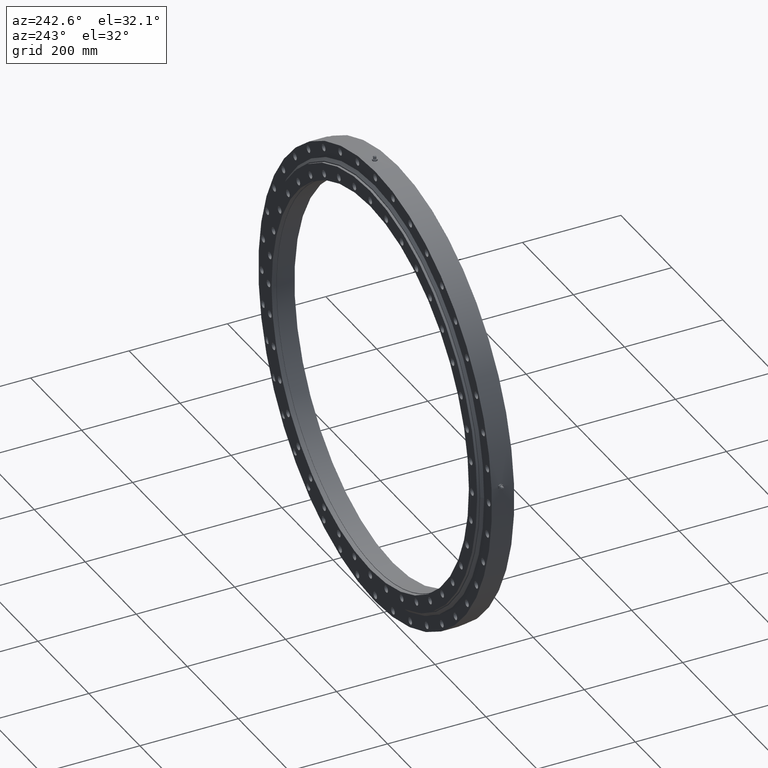
[diagram: clean part render]
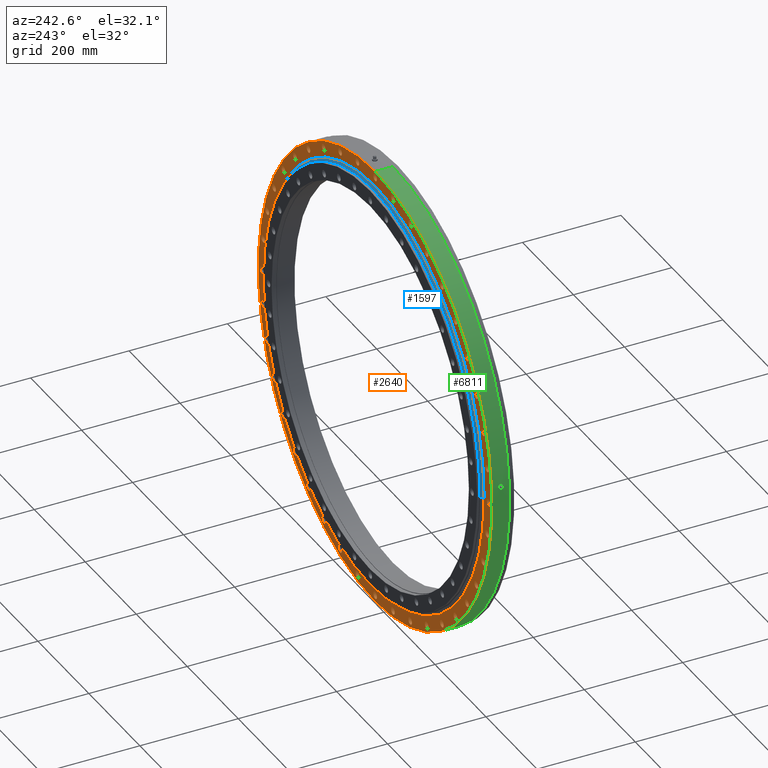
[diagram: same view with three faces highlighted in distinct colors, each labeled with its STEP entity id]
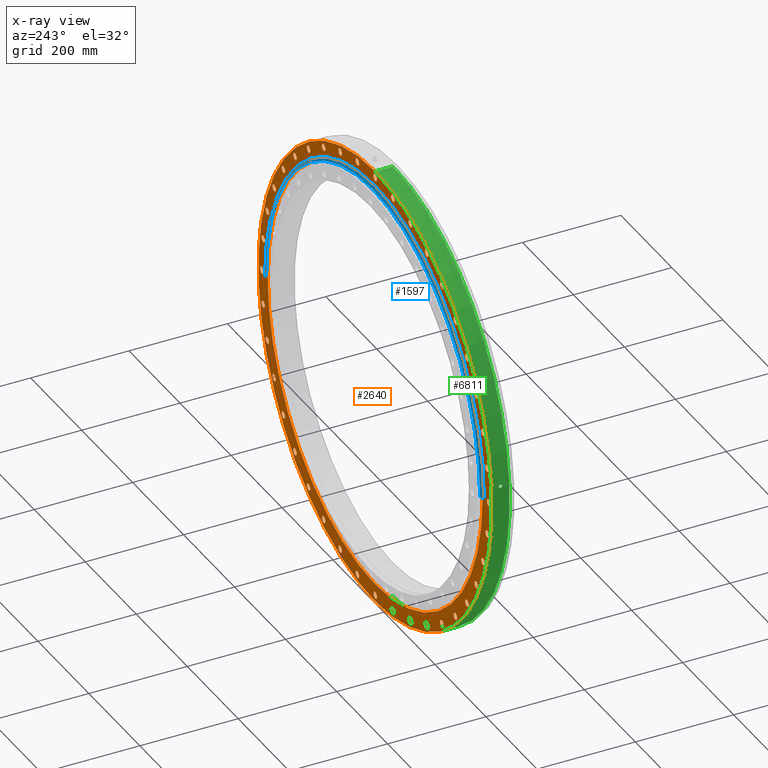
[diagram: x-ray of the same camera — body ghosted, the three highlighted faces saturated]
A machine part, auxiliary view with three faces highlighted in distinct colors.
The next image is the same camera in x-ray (body ghosted, the three faces saturated) — at least one of them is partly hidden behind the body in this view.
Their STEP definitions:

[orange] entity #2640 — the highlighted planar face has unit normal (0, -1, 0).
#40 = DIRECTION ( 'NONE',  ( 0.8090169943749427900, 0.0000000000000000000, 0.5877852522924795800 ) ) ;
#48 = DIRECTION ( 'NONE',  ( 0.0000000000000000000, 1.000000000000000000, 0.0000000000000000000 ) ) ;
#52 = DIRECTION ( 'NONE',  ( -0.4539904997395423100, 0.0000000000000000000, -0.8910065241883701200 ) ) ;
#64 = CARTESIAN_POINT ( 'NONE',  ( -396.4979032638212300, 17.99999999999999600, 195.0257723841031300 ) ) ;
#76 = CIRCLE ( 'NONE', #4343, 7.000000000000016900 ) ;
#78 = CARTESIAN_POINT ( 'NONE',  ( -202.0257723841016900, 17.99999999999999600, -396.4979032638220200 ) ) ;
#81 = DIRECTION ( 'NONE',  ( 0.4539904997395549100, 0.0000000000000000000, -0.8910065241883636800 ) ) ;
#95 = DIRECTION ( 'NONE',  ( -0.9876883405951384400, 0.0000000000000000000, 0.1564344650402269600 ) ) ;
#97 = ORIENTED_EDGE ( 'NONE', *, *, #2071, .F. ) ;
#100 = AXIS2_PLACEMENT_3D ( 'NONE', #1605, #7698, #8644 ) ;
#105 = ORIENTED_EDGE ( 'NONE', *, *, #3156, .F. ) ;
#115 = DIRECTION ( 'NONE',  ( 0.0000000000000000000, 1.000000000000000000, 0.0000000000000000000 ) ) ;
#135 = CIRCLE ( 'NONE', #10275, 7.000000000000026600 ) ;
#166 = ORIENTED_EDGE ( 'NONE', *, *, #8751, .F. ) ;
#168 = CARTESIAN_POINT ( 'NONE',  ( 137.5125624968522700, 17.99999999999999600, 423.2201497513431700 ) ) ;
#182 = ORIENTED_EDGE ( 'NONE', *, *, #10466, .F. ) ;
#183 = DIRECTION ( 'NONE',  ( -0.4539904997395454700, 0.0000000000000000000, 0.8910065241883685600 ) ) ;
#211 = VERTEX_POINT ( 'NONE', #1252 ) ;
#228 = AXIS2_PLACEMENT_3D ( 'NONE', #8103, #3126, #7300 ) ;
#252 = CIRCLE ( 'NONE', #10615, 7.000000000000004400 ) ;
#254 = VERTEX_POINT ( 'NONE', #9218 ) ;
#274 = CIRCLE ( 'NONE', #4825, 7.000000000000014200 ) ;
#310 = ORIENTED_EDGE ( 'NONE', *, *, #7760, .F. ) ;
#321 = ORIENTED_EDGE ( 'NONE', *, *, #5277, .F. ) ;
#332 = EDGE_LOOP ( 'NONE', ( #8828, #2219 ) ) ;
#336 = CARTESIAN_POINT ( 'NONE',  ( -445.0000000000000000, 17.99999999999999600, 4.941095498271971500E-012 ) ) ;
#340 = DIRECTION ( 'NONE',  ( -0.9510565162951539800, 0.0000000000000000000, 0.3090169943749462900 ) ) ;
#344 = EDGE_CURVE ( 'NONE', #3225, #695, #1680, .T. ) ;
#348 = CARTESIAN_POINT ( 'NONE',  ( 69.61333694290301800, 17.99999999999999600, 439.5213115648363700 ) ) ;
#363 = CARTESIAN_POINT ( 'NONE',  ( 261.5644372701511300, 17.99999999999999600, 367.0125624968512200 ) ) ;
#375 = VERTEX_POINT ( 'NONE', #7304 ) ;
#381 = VERTEX_POINT ( 'NONE', #1672 ) ;
#390 = EDGE_LOOP ( 'NONE', ( #6801, #182 ) ) ;
#394 = CIRCLE ( 'NONE', #2763, 7.000000000000008900 ) ;
#415 = ORIENTED_EDGE ( 'NONE', *, *, #6297, .F. ) ;
#425 = PLANE ( 'NONE',  #6030 ) ;
#451 = CIRCLE ( 'NONE', #1991, 6.999999999999983100 ) ;
#471 = CIRCLE ( 'NONE', #5093, 6.999999999999992000 ) ;
#474 = VERTEX_POINT ( 'NONE', #1020 ) ;
#489 = VERTEX_POINT ( 'NONE', #871 ) ;
#512 = CIRCLE ( 'NONE', #6777, 7.000000000000008900 ) ;
#524 = CARTESIAN_POINT ( 'NONE',  ( -202.0257723840929600, 17.99999999999999600, 389.4979032638264000 ) ) ;
#533 = FACE_BOUND ( 'NONE', #7871, .T. ) ;
#543 = EDGE_CURVE ( 'NONE', #3331, #9133, #2103, .T. ) ;
#562 = CARTESIAN_POINT ( 'NONE',  ( -360.0125624968483200, 17.99999999999999600, 261.5644372701550500 ) ) ;
#570 = DIRECTION ( 'NONE',  ( -0.4539904997395454700, 0.0000000000000000000, 0.8910065241883685600 ) ) ;
#586 = CARTESIAN_POINT ( 'NONE',  ( 314.6625176280144300, 17.99999999999999600, 314.6625176280128900 ) ) ;
#606 = FACE_BOUND ( 'NONE', #7477, .T. ) ;
#608 = CARTESIAN_POINT ( 'NONE',  ( -314.6625176280165900, 17.99999999999999600, -321.6625176280106800 ) ) ;
#611 = DIRECTION ( 'NONE',  ( -0.0000000000000000000, 1.000000000000000000, -0.0000000000000000000 ) ) ;
#617 = AXIS2_PLACEMENT_3D ( 'NONE', #5247, #10189, #4428 ) ;
#621 = DIRECTION ( 'NONE',  ( -0.9510565162951527500, 0.0000000000000000000, -0.3090169943749498900 ) ) ;
#639 = EDGE_CURVE ( 'NONE', #4509, #3712, #6229, .T. ) ;
#640 = ORIENTED_EDGE ( 'NONE', *, *, #5382, .F. ) ;
#646 = ORIENTED_EDGE ( 'NONE', *, *, #6017, .T. ) ;
#652 = EDGE_CURVE ( 'NONE', #2656, #4522, #9050, .T. ) ;
#663 = CIRCLE ( 'NONE', #10143, 7.000000000000006200 ) ;
#669 = CARTESIAN_POINT ( 'NONE',  ( -202.0257723840929600, 17.99999999999999600, 403.4979032638264000 ) ) ;
#670 = CIRCLE ( 'NONE', #8466, 7.000000000000026600 ) ;
#695 = VERTEX_POINT ( 'NONE', #9231 ) ;
#757 = DIRECTION ( 'NONE',  ( 0.0000000000000000000, 1.000000000000000000, 0.0000000000000000000 ) ) ;
#780 = CARTESIAN_POINT ( 'NONE',  ( 6.495661946816568900E-012, 17.99999999999999600, 438.0000000000000000 ) ) ;
#791 = DIRECTION ( 'NONE',  ( 0.0000000000000000000, 1.000000000000000000, 0.0000000000000000000 ) ) ;
#840 = VERTEX_POINT ( 'NONE', #5709 ) ;
#855 = CARTESIAN_POINT ( 'NONE',  ( 439.5213115648360800, 17.99999999999999600, -76.61333694290456700 ) ) ;
#859 = AXIS2_PLACEMENT_3D ( 'NONE', #8611, #7804, #2888 ) ;
#869 = CIRCLE ( 'NONE', #5258, 6.999999999999992000 ) ;
#871 = CARTESIAN_POINT ( 'NONE',  ( 137.5125624968487400, 17.99999999999999600, -416.2201497513443100 ) ) ;
#922 = CARTESIAN_POINT ( 'NONE',  ( 202.0257723840958300, 17.99999999999999600, -396.4979032638249800 ) ) ;
#924 = EDGE_CURVE ( 'NONE', #10014, #8902, #512, .T. ) ;
#927 = CARTESIAN_POINT ( 'NONE',  ( 69.61333694290301800, 17.99999999999999600, 446.5213115648363700 ) ) ;
#928 = ORIENTED_EDGE ( 'NONE', *, *, #3467, .F. ) ;
#934 = AXIS2_PLACEMENT_3D ( 'NONE', #348, #2154, #10393 ) ;
#967 = CARTESIAN_POINT ( 'NONE',  ( -439.5213115648355700, 17.99999999999999600, 69.61333694290772200 ) ) ;
#985 = VERTEX_POINT ( 'NONE', #5834 ) ;
#986 = ORIENTED_EDGE ( 'NONE', *, *, #1226, .F. ) ;
#990 = AXIS2_PLACEMENT_3D ( 'NONE', #6737, #1789, #8366 ) ;
#993 = CARTESIAN_POINT ( 'NONE',  ( -3.387386302486776800E-012, 17.99999999999999600, -438.0000000000000000 ) ) ;
#1006 = AXIS2_PLACEMENT_3D ( 'NONE', #7700, #1175, #2131 ) ;
#1017 = EDGE_CURVE ( 'NONE', #3860, #8810, #1048, .T. ) ;
#1020 = CARTESIAN_POINT ( 'NONE',  ( 314.6625176280144300, 17.99999999999999600, 321.6625176280128900 ) ) ;
#1048 = CIRCLE ( 'NONE', #2216, 7.000000000000029300 ) ;
#1056 = CIRCLE ( 'NONE', #1006, 6.999999999999994700 ) ;
#1065 = CARTESIAN_POINT ( 'NONE',  ( -69.61333694289649500, 17.99999999999999600, 439.5213115648373900 ) ) ;
#1073 = DIRECTION ( 'NONE',  ( 0.5877852522924617000, 0.0000000000000000000, 0.8090169943749556700 ) ) ;
#1082 = AXIS2_PLACEMENT_3D ( 'NONE', #8874, #5624, #8050 ) ;
#1100 = EDGE_CURVE ( 'NONE', #489, #2093, #135, .T. ) ;
#1117 = EDGE_CURVE ( 'NONE', #7749, #6215, #663, .T. ) ;
#1140 = VERTEX_POINT ( 'NONE', #8845 ) ;
#1150 = CARTESIAN_POINT ( 'NONE',  ( 137.5125624968487400, 17.99999999999999600, -430.2201497513443100 ) ) ;
#1162 = CARTESIAN_POINT ( 'NONE',  ( 137.5125624968487400, 17.99999999999999600, -423.2201497513443100 ) ) ;
#1166 = EDGE_CURVE ( 'NONE', #5314, #4610, #394, .T. ) ;
#1175 = DIRECTION ( 'NONE',  ( 0.0000000000000000000, 1.000000000000000000, 0.0000000000000000000 ) ) ;
#1187 = DIRECTION ( 'NONE',  ( -0.5877852522924706900, 0.0000000000000000000, -0.8090169943749492300 ) ) ;
#1215 = DIRECTION ( 'NONE',  ( 0.0000000000000000000, 1.000000000000000000, 0.0000000000000000000 ) ) ;
#1226 = EDGE_CURVE ( 'NONE', #6565, #8399, #2111, .T. ) ;
#1251 = DIRECTION ( 'NONE',  ( 0.0000000000000000000, 1.000000000000000000, 0.0000000000000000000 ) ) ;
#1252 = CARTESIAN_POINT ( 'NONE',  ( 69.61333694290301800, 17.99999999999999600, 432.5213115648363700 ) ) ;
#1260 = EDGE_LOOP ( 'NONE', ( #10710, #5491 ) ) ;
#1267 = FACE_BOUND ( 'NONE', #7788, .T. ) ;
#1281 = AXIS2_PLACEMENT_3D ( 'NONE', #2671, #8409, #5983 ) ;
#1285 = CARTESIAN_POINT ( 'NONE',  ( 360.0125624968522400, 17.99999999999999600, 261.5644372701496500 ) ) ;
#1296 = CARTESIAN_POINT ( 'NONE',  ( 360.0125624968522400, 17.99999999999999600, 261.5644372701496500 ) ) ;
#1309 = FACE_BOUND ( 'NONE', #3969, .T. ) ;
#1341 = DIRECTION ( 'NONE',  ( 0.0000000000000000000, 1.000000000000000000, 0.0000000000000000000 ) ) ;
#1345 = VERTEX_POINT ( 'NONE', #363 ) ;
#1350 = CARTESIAN_POINT ( 'NONE',  ( 360.0125624968503100, 17.99999999999999600, -268.5644372701523800 ) ) ;
#1364 = EDGE_CURVE ( 'NONE', #10305, #10372, #6472, .T. ) ;
#1374 = ORIENTED_EDGE ( 'NONE', *, *, #5240, .F. ) ;
#1389 = DIRECTION ( 'NONE',  ( 0.7071067811865395800, 0.0000000000000000000, 0.7071067811865554600 ) ) ;
#1392 = AXIS2_PLACEMENT_3D ( 'NONE', #3472, #10065, #8390 ) ;
#1436 = AXIS2_PLACEMENT_3D ( 'NONE', #2732, #7651, #1900 ) ;
#1455 = ORIENTED_EDGE ( 'NONE', *, *, #10623, .F. ) ;
#1456 = CARTESIAN_POINT ( 'NONE',  ( 360.0125624968503100, 17.99999999999999600, -261.5644372701523800 ) ) ;
#1473 = ORIENTED_EDGE ( 'NONE', *, *, #3444, .F. ) ;
#1475 = DIRECTION ( 'NONE',  ( 0.0000000000000000000, 1.000000000000000000, 0.0000000000000000000 ) ) ;
#1485 = DIRECTION ( 'NONE',  ( -0.5877852522924706900, 0.0000000000000000000, -0.8090169943749492300 ) ) ;
#1524 = ORIENTED_EDGE ( 'NONE', *, *, #8367, .F. ) ;
#1547 = CIRCLE ( 'NONE', #9690, 6.999999999999974200 ) ;
#1552 = FACE_BOUND ( 'NONE', #4851, .T. ) ;
#1558 = CARTESIAN_POINT ( 'NONE',  ( -261.5644372701537500, 17.99999999999999600, -367.0125624968492800 ) ) ;
#1559 = EDGE_LOOP ( 'NONE', ( #8943, #1473 ) ) ;
#1567 = CARTESIAN_POINT ( 'NONE',  ( 202.0257723840958300, 17.99999999999999600, -389.4979032638249800 ) ) ;
#1578 = VERTEX_POINT ( 'NONE', #5123 ) ;
#1605 = CARTESIAN_POINT ( 'NONE',  ( 202.0257723840989000, 17.99999999999999600, 396.4979032638233900 ) ) ;
#1619 = EDGE_LOOP ( 'NONE', ( #6880, #1524 ) ) ;
#1642 = CARTESIAN_POINT ( 'NONE',  ( -423.2201497513418100, 17.99999999999999600, 144.5125624968566200 ) ) ;
#1645 = DIRECTION ( 'NONE',  ( 0.0000000000000000000, 1.000000000000000000, 0.0000000000000000000 ) ) ;
#1672 = CARTESIAN_POINT ( 'NONE',  ( 261.5644372701484600, 17.99999999999999600, -353.0125624968531500 ) ) ;
#1677 = EDGE_CURVE ( 'NONE', #10351, #2003, #4943, .T. ) ;
#1679 = FACE_BOUND ( 'NONE', #3357, .T. ) ;
#1680 = CIRCLE ( 'NONE', #8444, 7.000000000000007100 ) ;
#1739 = DIRECTION ( 'NONE',  ( 0.8090169943749530000, 0.0000000000000000000, -0.5877852522924654800 ) ) ;
#1757 = DIRECTION ( 'NONE',  ( 0.0000000000000000000, 1.000000000000000000, 0.0000000000000000000 ) ) ;
#1768 = EDGE_LOOP ( 'NONE', ( #986, #166 ) ) ;
#1789 = DIRECTION ( 'NONE',  ( 0.0000000000000000000, 1.000000000000000000, 0.0000000000000000000 ) ) ;
#1798 = AXIS2_PLACEMENT_3D ( 'NONE', #9719, #5717, #9878 ) ;
#1806 = EDGE_LOOP ( 'NONE', ( #8658, #5285 ) ) ;
#1809 = CIRCLE ( 'NONE', #6713, 7.000000000000022200 ) ;
#1812 = EDGE_CURVE ( 'NONE', #4377, #3575, #10564, .T. ) ;
#1828 = ORIENTED_EDGE ( 'NONE', *, *, #8344, .F. ) ;
#1832 = DIRECTION ( 'NONE',  ( -0.9876883405951384400, 0.0000000000000000000, 0.1564344650402269600 ) ) ;
#1847 = DIRECTION ( 'NONE',  ( 0.0000000000000000000, 1.000000000000000000, 0.0000000000000000000 ) ) ;
#1874 = CARTESIAN_POINT ( 'NONE',  ( 0.0000000000000000000, 17.99999999999999600, 458.0000000000000600 ) ) ;
#1878 = EDGE_CURVE ( 'NONE', #4522, #2656, #1056, .T. ) ;
#1887 = CARTESIAN_POINT ( 'NONE',  ( -69.61333694289649500, 17.99999999999999600, 446.5213115648373900 ) ) ;
#1888 = CARTESIAN_POINT ( 'NONE',  ( 445.0000000000000000, 17.99999999999999600, 6.999999999998175700 ) ) ;
#1892 = CARTESIAN_POINT ( 'NONE',  ( -439.5213115648355700, 17.99999999999999600, 69.61333694290772200 ) ) ;
#1900 = DIRECTION ( 'NONE',  ( 0.0000000000000000000, 0.0000000000000000000, 1.000000000000000000 ) ) ;
#1917 = CARTESIAN_POINT ( 'NONE',  ( 261.5644372701511300, 17.99999999999999600, 360.0125624968512200 ) ) ;
#1931 = ORIENTED_EDGE ( 'NONE', *, *, #9038, .F. ) ;
#1933 = FACE_BOUND ( 'NONE', #7896, .T. ) ;
#1955 = AXIS2_PLACEMENT_3D ( 'NONE', #6677, #1475, #6877 ) ;
#1978 = CARTESIAN_POINT ( 'NONE',  ( -445.0000000000000000, 17.99999999999999600, 7.000000000004950700 ) ) ;
#1989 = CARTESIAN_POINT ( 'NONE',  ( -261.5644372701458500, 17.99999999999999600, 360.0125624968551400 ) ) ;
#1991 = AXIS2_PLACEMENT_3D ( 'NONE', #7132, #2935, #7317 ) ;
#1997 = VERTEX_POINT ( 'NONE', #6176 ) ;
#2003 = VERTEX_POINT ( 'NONE', #7792 ) ;
#2023 = EDGE_CURVE ( 'NONE', #3281, #7342, #5740, .T. ) ;
#2031 = CARTESIAN_POINT ( 'NONE',  ( -360.0125624968483200, 17.99999999999999600, 254.5644372701550500 ) ) ;
#2038 = CARTESIAN_POINT ( 'NONE',  ( -396.4979032638212300, 17.99999999999999600, 202.0257723841031300 ) ) ;
#2045 = CARTESIAN_POINT ( 'NONE',  ( -69.61333694290625800, 17.99999999999999600, -439.5213115648357400 ) ) ;
#2053 = DIRECTION ( 'NONE',  ( 0.0000000000000000000, 1.000000000000000000, 0.0000000000000000000 ) ) ;
#2062 = ORIENTED_EDGE ( 'NONE', *, *, #4285, .F. ) ;
#2071 = EDGE_CURVE ( 'NONE', #4821, #5282, #8300, .T. ) ;
#2093 = VERTEX_POINT ( 'NONE', #1150 ) ;
#2095 = CARTESIAN_POINT ( 'NONE',  ( -439.5213115648370500, 17.99999999999999600, -62.61333694289804400 ) ) ;
#2103 = CIRCLE ( 'NONE', #8266, 7.000000000000019500 ) ;
#2105 = DIRECTION ( 'NONE',  ( 0.0000000000000000000, 0.0000000000000000000, 1.000000000000000000 ) ) ;
#2111 = CIRCLE ( 'NONE', #859, 7.000000000000019500 ) ;
#2131 = DIRECTION ( 'NONE',  ( 0.8910065241883716700, 0.0000000000000000000, -0.4539904997395390900 ) ) ;
#2136 = VERTEX_POINT ( 'NONE', #1888 ) ;
#2151 = CARTESIAN_POINT ( 'NONE',  ( 423.2201497513426600, 17.99999999999999600, -130.5125624968537200 ) ) ;
#2154 = DIRECTION ( 'NONE',  ( 0.0000000000000000000, 1.000000000000000000, 0.0000000000000000000 ) ) ;
#2155 = ORIENTED_EDGE ( 'NONE', *, *, #1117, .F. ) ;
#2172 = CIRCLE ( 'NONE', #8643, 7.000000000000034600 ) ;
#2181 = DIRECTION ( 'NONE',  ( 0.8090169943749427900, 0.0000000000000000000, 0.5877852522924795800 ) ) ;
#2195 = AXIS2_PLACEMENT_3D ( 'NONE', #2747, #9323, #3563 ) ;
#2200 = FACE_BOUND ( 'NONE', #9999, .T. ) ;
#2209 = DIRECTION ( 'NONE',  ( 0.0000000000000000000, 1.000000000000000000, 0.0000000000000000000 ) ) ;
#2216 = AXIS2_PLACEMENT_3D ( 'NONE', #5417, #4455, #4542 ) ;
#2217 = AXIS2_PLACEMENT_3D ( 'NONE', #2038, #6977, #6912 ) ;
#2219 = ORIENTED_EDGE ( 'NONE', *, *, #7174, .F. ) ;
#2262 = CIRCLE ( 'NONE', #6537, 7.000000000000006200 ) ;
#2291 = CARTESIAN_POINT ( 'NONE',  ( 0.0000000000000000000, 17.99999999999999600, 0.0000000000000000000 ) ) ;
#2303 = CARTESIAN_POINT ( 'NONE',  ( -423.2201497513448200, 17.99999999999999600, -130.5125624968472900 ) ) ;
#2333 = VERTEX_POINT ( 'NONE', #4410 ) ;
#2339 = FACE_BOUND ( 'NONE', #6723, .T. ) ;
#2349 = DIRECTION ( 'NONE',  ( -0.7071067811865475700, 0.0000000000000000000, 0.7071067811865475700 ) ) ;
#2353 = ORIENTED_EDGE ( 'NONE', *, *, #4848, .F. ) ;
#2411 = CARTESIAN_POINT ( 'NONE',  ( 314.6625176280117600, 17.99999999999999600, -314.6625176280155100 ) ) ;
#2418 = CARTESIAN_POINT ( 'NONE',  ( 137.5125624968522700, 17.99999999999999600, 416.2201497513431100 ) ) ;
#2441 = DIRECTION ( 'NONE',  ( 1.000000000000000000, 0.0000000000000000000, 1.047444401652940600E-014 ) ) ;
#2445 = EDGE_CURVE ( 'NONE', #4992, #3395, #869, .T. ) ;
#2459 = CIRCLE ( 'NONE', #6436, 6.999999999999984900 ) ;
#2462 = EDGE_LOOP ( 'NONE', ( #310, #10272 ) ) ;
#2493 = AXIS2_PLACEMENT_3D ( 'NONE', #10381, #3329, #5775 ) ;
#2498 = DIRECTION ( 'NONE',  ( 6.982962677686289600E-015, 0.0000000000000000000, -1.000000000000000000 ) ) ;
#2511 = AXIS2_PLACEMENT_3D ( 'NONE', #1892, #7315, #95 ) ;
#2542 = AXIS2_PLACEMENT_3D ( 'NONE', #4767, #9706, #5605 ) ;
#2553 = EDGE_CURVE ( 'NONE', #5282, #4821, #3142, .T. ) ;
#2556 = AXIS2_PLACEMENT_3D ( 'NONE', #922, #5892, #81 ) ;
#2562 = CIRCLE ( 'NONE', #2511, 7.000000000000024000 ) ;
#2570 = AXIS2_PLACEMENT_3D ( 'NONE', #9265, #3519, #8433 ) ;
#2573 = AXIS2_PLACEMENT_3D ( 'NONE', #2703, #3707, #570 ) ;
#2581 = AXIS2_PLACEMENT_3D ( 'NONE', #168, #5134, #10078 ) ;
#2582 = CARTESIAN_POINT ( 'NONE',  ( -314.6625176280096000, 17.99999999999999600, 321.6625176280177200 ) ) ;
#2621 = CIRCLE ( 'NONE', #7841, 7.000000000000016900 ) ;
#2640 = ADVANCED_FACE ( 'NONE', ( #5579, #5592, #4301, #9180, #4385, #10617, #1552, #2887, #3275, #6190, #5724, #8117, #7880, #9020, #4545, #5158, #4266, #10063, #8743, #7350, #5947, #1933, #3378, #4792, #2339, #1679, #10708, #2200, #1267, #10181, #1309, #6491, #6225, #9929, #533, #4150, #5414, #9171, #10596, #5251, #606, #10281 ), #425, .F. ) ;
#2656 = VERTEX_POINT ( 'NONE', #9467 ) ;
#2668 = DIRECTION ( 'NONE',  ( 0.0000000000000000000, 1.000000000000000000, 0.0000000000000000000 ) ) ;
#2670 = DIRECTION ( 'NONE',  ( 0.0000000000000000000, 1.000000000000000000, 0.0000000000000000000 ) ) ;
#2671 = CARTESIAN_POINT ( 'NONE',  ( 69.61333694290301800, 17.99999999999999600, 439.5213115648363700 ) ) ;
#2676 = DIRECTION ( 'NONE',  ( 0.0000000000000000000, 1.000000000000000000, 0.0000000000000000000 ) ) ;
#2689 = AXIS2_PLACEMENT_3D ( 'NONE', #967, #6772, #1832 ) ;
#2692 = CARTESIAN_POINT ( 'NONE',  ( -445.0000000000000000, 17.99999999999999600, -6.999999999995067900 ) ) ;
#2703 = CARTESIAN_POINT ( 'NONE',  ( -202.0257723840929600, 17.99999999999999600, 396.4979032638264000 ) ) ;
#2729 = CIRCLE ( 'NONE', #9566, 458.0000000000000600 ) ;
#2732 = CARTESIAN_POINT ( 'NONE',  ( 0.0000000000000000000, 17.99999999999999600, 0.0000000000000000000 ) ) ;
#2737 = CIRCLE ( 'NONE', #990, 7.000000000000004400 ) ;
#2747 = CARTESIAN_POINT ( 'NONE',  ( -137.5125624968550000, 17.99999999999999600, -423.2201497513422600 ) ) ;
#2762 = EDGE_LOOP ( 'NONE', ( #6461, #1455 ) ) ;
#2763 = AXIS2_PLACEMENT_3D ( 'NONE', #8648, #10364, #4587 ) ;
#2802 = EDGE_LOOP ( 'NONE', ( #5578, #4772 ) ) ;
#2812 = CIRCLE ( 'NONE', #9657, 7.000000000000004400 ) ;
#2816 = ORIENTED_EDGE ( 'NONE', *, *, #1812, .F. ) ;
#2823 = CARTESIAN_POINT ( 'NONE',  ( 396.4979032638243600, 17.99999999999999600, 202.0257723840970500 ) ) ;
#2860 = DIRECTION ( 'NONE',  ( 0.0000000000000000000, 1.000000000000000000, 0.0000000000000000000 ) ) ;
#2863 = AXIS2_PLACEMENT_3D ( 'NONE', #9665, #4733, #7996 ) ;
#2877 = ORIENTED_EDGE ( 'NONE', *, *, #5098, .F. ) ;
#2883 = DIRECTION ( 'NONE',  ( 0.0000000000000000000, 1.000000000000000000, 0.0000000000000000000 ) ) ;
#2887 = FACE_BOUND ( 'NONE', #5113, .T. ) ;
#2888 = DIRECTION ( 'NONE',  ( -0.8910065241883685600, 0.0000000000000000000, 0.4539904997395454700 ) ) ;
#2928 = EDGE_CURVE ( 'NONE', #8902, #10014, #10058, .T. ) ;
#2935 = DIRECTION ( 'NONE',  ( 0.0000000000000000000, 1.000000000000000000, 0.0000000000000000000 ) ) ;
#2941 = CARTESIAN_POINT ( 'NONE',  ( 6.494804694057165800E-012, 17.99999999999999600, 445.0000000000000000 ) ) ;
#2942 = DIRECTION ( 'NONE',  ( -0.7071067811865436900, 0.0000000000000000000, -0.7071067811865515700 ) ) ;
#2976 = EDGE_CURVE ( 'NONE', #6925, #3334, #1809, .T. ) ;
#3021 = CIRCLE ( 'NONE', #4966, 7.000000000000016900 ) ;
#3022 = ORIENTED_EDGE ( 'NONE', *, *, #2976, .F. ) ;
#3024 = VERTEX_POINT ( 'NONE', #9979 ) ;
#3026 = ORIENTED_EDGE ( 'NONE', *, *, #10670, .F. ) ;
#3043 = DIRECTION ( 'NONE',  ( -0.8090169943749427900, 0.0000000000000000000, -0.5877852522924795800 ) ) ;
#3052 = CIRCLE ( 'NONE', #10680, 7.000000000000006200 ) ;
#3055 = DIRECTION ( 'NONE',  ( -0.8090169943749492300, 0.0000000000000000000, 0.5877852522924706900 ) ) ;
#3069 = EDGE_CURVE ( 'NONE', #8219, #375, #2459, .T. ) ;
#3098 = CARTESIAN_POINT ( 'NONE',  ( 5.161580096706307900E-014, 18.00000000000000000, -421.4750000000000800 ) ) ;
#3106 = CARTESIAN_POINT ( 'NONE',  ( -69.61333694289649500, 17.99999999999999600, 432.5213115648373900 ) ) ;
#3116 = AXIS2_PLACEMENT_3D ( 'NONE', #6406, #611, #4750 ) ;
#3126 = DIRECTION ( 'NONE',  ( 0.0000000000000000000, 1.000000000000000000, 0.0000000000000000000 ) ) ;
#3142 = CIRCLE ( 'NONE', #617, 421.4750000000000200 ) ;
#3156 = EDGE_CURVE ( 'NONE', #3575, #4377, #1547, .T. ) ;
#3166 = CIRCLE ( 'NONE', #4472, 7.000000000000006200 ) ;
#3170 = DIRECTION ( 'NONE',  ( -0.9876883405951371000, 0.0000000000000000000, -0.1564344650402347000 ) ) ;
#3186 = CARTESIAN_POINT ( 'NONE',  ( -261.5644372701537500, 17.99999999999999600, -360.0125624968492800 ) ) ;
#3203 = DIRECTION ( 'NONE',  ( 0.9876883405951392100, 0.0000000000000000000, -0.1564344650402211300 ) ) ;
#3205 = CIRCLE ( 'NONE', #8113, 7.000000000000032900 ) ;
#3225 = VERTEX_POINT ( 'NONE', #5234 ) ;
#3234 = CIRCLE ( 'NONE', #7924, 7.000000000000013300 ) ;
#3271 = CARTESIAN_POINT ( 'NONE',  ( -396.4979032638256600, 17.99999999999999600, -209.0257723840944700 ) ) ;
#3275 = FACE_BOUND ( 'NONE', #3591, .T. ) ;
#3281 = VERTEX_POINT ( 'NONE', #7797 ) ;
#3312 = CARTESIAN_POINT ( 'NONE',  ( -3.387386302486776800E-012, 17.99999999999999600, -445.0000000000000000 ) ) ;
#3320 = CARTESIAN_POINT ( 'NONE',  ( -396.4979032638256600, 17.99999999999999600, -195.0257723840944700 ) ) ;
#3324 = EDGE_CURVE ( 'NONE', #695, #3225, #6707, .T. ) ;
#3329 = DIRECTION ( 'NONE',  ( 0.0000000000000000000, 1.000000000000000000, 0.0000000000000000000 ) ) ;
#3331 = VERTEX_POINT ( 'NONE', #669 ) ;
#3332 = CARTESIAN_POINT ( 'NONE',  ( 360.0125624968522400, 17.99999999999999600, 254.5644372701496500 ) ) ;
#3334 = VERTEX_POINT ( 'NONE', #4694 ) ;
#3341 = ORIENTED_EDGE ( 'NONE', *, *, #3389, .F. ) ;
#3349 = CARTESIAN_POINT ( 'NONE',  ( 5.608882340094878600E-014, 17.99999999999999600, -458.0000000000000600 ) ) ;
#3357 = EDGE_LOOP ( 'NONE', ( #9208, #640 ) ) ;
#3358 = CARTESIAN_POINT ( 'NONE',  ( -261.5644372701458500, 17.99999999999999600, 360.0125624968551400 ) ) ;
#3370 = CARTESIAN_POINT ( 'NONE',  ( 314.6625176280117600, 17.99999999999999600, -307.6625176280155100 ) ) ;
#3378 = FACE_BOUND ( 'NONE', #9776, .T. ) ;
#3389 = EDGE_CURVE ( 'NONE', #4610, #5314, #10434, .T. ) ;
#3395 = VERTEX_POINT ( 'NONE', #8984 ) ;
#3397 = EDGE_CURVE ( 'NONE', #7970, #9345, #4497, .T. ) ;
#3399 = CARTESIAN_POINT ( 'NONE',  ( -137.5125624968550000, 17.99999999999999600, -423.2201497513422600 ) ) ;
#3414 = ORIENTED_EDGE ( 'NONE', *, *, #639, .T. ) ;
#3433 = CARTESIAN_POINT ( 'NONE',  ( -314.6625176280096000, 17.99999999999999600, 314.6625176280177200 ) ) ;
#3435 = ORIENTED_EDGE ( 'NONE', *, *, #6654, .F. ) ;
#3444 = EDGE_CURVE ( 'NONE', #9811, #4222, #7223, .T. ) ;
#3467 = EDGE_CURVE ( 'NONE', #5089, #9230, #6032, .T. ) ;
#3469 = ORIENTED_EDGE ( 'NONE', *, *, #3957, .F. ) ;
#3472 = CARTESIAN_POINT ( 'NONE',  ( 261.5644372701484600, 17.99999999999999600, -360.0125624968531500 ) ) ;
#3481 = ORIENTED_EDGE ( 'NONE', *, *, #5043, .F. ) ;
#3491 = ORIENTED_EDGE ( 'NONE', *, *, #3324, .F. ) ;
#3519 = DIRECTION ( 'NONE',  ( 0.0000000000000000000, 1.000000000000000000, 0.0000000000000000000 ) ) ;
#3536 = EDGE_CURVE ( 'NONE', #6215, #7749, #10287, .T. ) ;
#3541 = VERTEX_POINT ( 'NONE', #6487 ) ;
#3563 = DIRECTION ( 'NONE',  ( -0.3090169943749427300, 0.0000000000000000000, -0.9510565162951550900 ) ) ;
#3564 = EDGE_CURVE ( 'NONE', #9144, #254, #9250, .T. ) ;
#3575 = VERTEX_POINT ( 'NONE', #3973 ) ;
#3584 = DIRECTION ( 'NONE',  ( 0.0000000000000000000, 1.000000000000000000, 0.0000000000000000000 ) ) ;
#3591 = EDGE_LOOP ( 'NONE', ( #2877, #7495 ) ) ;
#3656 = CIRCLE ( 'NONE', #8666, 7.000000000000022200 ) ;
#3707 = DIRECTION ( 'NONE',  ( 0.0000000000000000000, 1.000000000000000000, 0.0000000000000000000 ) ) ;
#3712 = VERTEX_POINT ( 'NONE', #3349 ) ;
#3718 = DIRECTION ( 'NONE',  ( 0.0000000000000000000, 1.000000000000000000, 0.0000000000000000000 ) ) ;
#3740 = VERTEX_POINT ( 'NONE', #3332 ) ;
#3745 = VERTEX_POINT ( 'NONE', #8850 ) ;
#3746 = EDGE_CURVE ( 'NONE', #9432, #7053, #8078, .T. ) ;
#3781 = CIRCLE ( 'NONE', #1392, 7.000000000000004400 ) ;
#3783 = CARTESIAN_POINT ( 'NONE',  ( 69.61333694289959300, 17.99999999999999600, -439.5213115648367600 ) ) ;
#3790 = DIRECTION ( 'NONE',  ( 0.3090169943749535000, 0.0000000000000000000, -0.9510565162951515300 ) ) ;
#3799 = CIRCLE ( 'NONE', #6069, 6.999999999999984000 ) ;
#3860 = VERTEX_POINT ( 'NONE', #1887 ) ;
#3924 = DIRECTION ( 'NONE',  ( 0.0000000000000000000, 1.000000000000000000, 0.0000000000000000000 ) ) ;
#3926 = DIRECTION ( 'NONE',  ( 0.0000000000000000000, 1.000000000000000000, 0.0000000000000000000 ) ) ;
#3934 = AXIS2_PLACEMENT_3D ( 'NONE', #2411, #8147, #4867 ) ;
#3943 = ORIENTED_EDGE ( 'NONE', *, *, #8838, .F. ) ;
#3957 = EDGE_CURVE ( 'NONE', #8810, #3860, #5231, .T. ) ;
#3969 = EDGE_LOOP ( 'NONE', ( #6588, #5431 ) ) ;
#3973 = CARTESIAN_POINT ( 'NONE',  ( -314.6625176280165900, 17.99999999999999600, -307.6625176280106800 ) ) ;
#3979 = ORIENTED_EDGE ( 'NONE', *, *, #8889, .F. ) ;
#3996 = DIRECTION ( 'NONE',  ( 0.0000000000000000000, 1.000000000000000000, 0.0000000000000000000 ) ) ;
#4018 = CARTESIAN_POINT ( 'NONE',  ( 314.6625176280117600, 17.99999999999999600, -321.6625176280155100 ) ) ;
#4022 = DIRECTION ( 'NONE',  ( 0.0000000000000000000, 1.000000000000000000, 0.0000000000000000000 ) ) ;
#4150 = FACE_BOUND ( 'NONE', #10616, .T. ) ;
#4151 = CIRCLE ( 'NONE', #1798, 6.999999999999983100 ) ;
#4160 = CIRCLE ( 'NONE', #5023, 7.000000000000017800 ) ;
#4193 = DIRECTION ( 'NONE',  ( 0.0000000000000000000, 1.000000000000000000, 0.0000000000000000000 ) ) ;
#4222 = VERTEX_POINT ( 'NONE', #3320 ) ;
#4223 = DIRECTION ( 'NONE',  ( -0.3090169943749427300, 0.0000000000000000000, -0.9510565162951550900 ) ) ;
#4263 = DIRECTION ( 'NONE',  ( -0.7071067811865475700, 0.0000000000000000000, 0.7071067811865475700 ) ) ;
#4264 = CARTESIAN_POINT ( 'NONE',  ( 202.0257723840958300, 17.99999999999999600, -396.4979032638249800 ) ) ;
#4266 = FACE_BOUND ( 'NONE', #390, .T. ) ;
#4285 = EDGE_CURVE ( 'NONE', #7053, #9432, #3234, .T. ) ;
#4301 = FACE_BOUND ( 'NONE', #2762, .T. ) ;
#4343 = AXIS2_PLACEMENT_3D ( 'NONE', #562, #3926, #3055 ) ;
#4355 = DIRECTION ( 'NONE',  ( 0.0000000000000000000, 1.000000000000000000, 0.0000000000000000000 ) ) ;
#4366 = CIRCLE ( 'NONE', #7014, 7.000000000000028400 ) ;
#4371 = DIRECTION ( 'NONE',  ( 0.4539904997395360400, 0.0000000000000000000, 0.8910065241883734500 ) ) ;
#4377 = VERTEX_POINT ( 'NONE', #608 ) ;
#4385 = FACE_BOUND ( 'NONE', #7557, .T. ) ;
#4392 = EDGE_LOOP ( 'NONE', ( #1374, #9081 ) ) ;
#4399 = VERTEX_POINT ( 'NONE', #7898 ) ;
#4402 = DIRECTION ( 'NONE',  ( -0.9510565162951527500, 0.0000000000000000000, -0.3090169943749498900 ) ) ;
#4410 = CARTESIAN_POINT ( 'NONE',  ( -439.5213115648355700, 17.99999999999999600, 76.61333694290772200 ) ) ;
#4428 = DIRECTION ( 'NONE',  ( 0.0000000000000000000, 0.0000000000000000000, 1.000000000000000000 ) ) ;
#4455 = DIRECTION ( 'NONE',  ( 0.0000000000000000000, 1.000000000000000000, 0.0000000000000000000 ) ) ;
#4472 = AXIS2_PLACEMENT_3D ( 'NONE', #6522, #7356, #2441 ) ;
#4479 = EDGE_CURVE ( 'NONE', #4399, #6579, #10319, .T. ) ;
#4480 = CARTESIAN_POINT ( 'NONE',  ( -261.5644372701537500, 17.99999999999999600, -360.0125624968492800 ) ) ;
#4491 = EDGE_CURVE ( 'NONE', #2003, #10351, #4151, .T. ) ;
#4497 = CIRCLE ( 'NONE', #7939, 7.000000000000016900 ) ;
#4509 = VERTEX_POINT ( 'NONE', #1874 ) ;
#4522 = VERTEX_POINT ( 'NONE', #5179 ) ;
#4531 = EDGE_CURVE ( 'NONE', #8945, #985, #6313, .T. ) ;
#4542 = DIRECTION ( 'NONE',  ( -0.1564344650402308100, 0.0000000000000000000, 0.9876883405951376600 ) ) ;
#4545 = FACE_BOUND ( 'NONE', #9285, .T. ) ;
#4568 = ORIENTED_EDGE ( 'NONE', *, *, #7990, .F. ) ;
#4584 = DIRECTION ( 'NONE',  ( 0.0000000000000000000, 1.000000000000000000, 0.0000000000000000000 ) ) ;
#4587 = DIRECTION ( 'NONE',  ( -0.3090169943749462900, 0.0000000000000000000, 0.9510565162951539800 ) ) ;
#4594 = EDGE_CURVE ( 'NONE', #3395, #4992, #471, .T. ) ;
#4598 = ORIENTED_EDGE ( 'NONE', *, *, #8398, .F. ) ;
#4610 = VERTEX_POINT ( 'NONE', #9469 ) ;
#4613 = CARTESIAN_POINT ( 'NONE',  ( -3.386529049727374100E-012, 17.99999999999999600, -452.0000000000000000 ) ) ;
#4652 = CIRCLE ( 'NONE', #6348, 7.000000000000004400 ) ;
#4669 = CARTESIAN_POINT ( 'NONE',  ( -360.0125624968541700, 17.99999999999999600, -268.5644372701469800 ) ) ;
#4670 = CARTESIAN_POINT ( 'NONE',  ( -314.6625176280096000, 17.99999999999999600, 314.6625176280177200 ) ) ;
#4675 = CARTESIAN_POINT ( 'NONE',  ( 137.5125624968487400, 17.99999999999999600, -423.2201497513443100 ) ) ;
#4683 = DIRECTION ( 'NONE',  ( 0.8910065241883621300, 0.0000000000000000000, 0.4539904997395580700 ) ) ;
#4690 = ORIENTED_EDGE ( 'NONE', *, *, #7120, .F. ) ;
#4691 = CARTESIAN_POINT ( 'NONE',  ( -423.2201497513418100, 17.99999999999999600, 130.5125624968566200 ) ) ;
#4694 = CARTESIAN_POINT ( 'NONE',  ( -69.61333694290625800, 17.99999999999999600, -432.5213115648357400 ) ) ;
#4696 = AXIS2_PLACEMENT_3D ( 'NONE', #5923, #115, #2942 ) ;
#4733 = DIRECTION ( 'NONE',  ( 0.0000000000000000000, 1.000000000000000000, 0.0000000000000000000 ) ) ;
#4750 = DIRECTION ( 'NONE',  ( 0.0000000000000000000, 0.0000000000000000000, 1.000000000000000000 ) ) ;
#4758 = EDGE_CURVE ( 'NONE', #9345, #7970, #6292, .T. ) ;
#4762 = AXIS2_PLACEMENT_3D ( 'NONE', #6170, #3924, #9678 ) ;
#4765 = DIRECTION ( 'NONE',  ( 0.0000000000000000000, 1.000000000000000000, 0.0000000000000000000 ) ) ;
#4767 = CARTESIAN_POINT ( 'NONE',  ( -445.0000000000000000, 17.99999999999999600, 4.941095498271971500E-012 ) ) ;
#4772 = ORIENTED_EDGE ( 'NONE', *, *, #7731, .F. ) ;
#4792 = FACE_BOUND ( 'NONE', #7571, .T. ) ;
#4796 = EDGE_LOOP ( 'NONE', ( #8358, #1931 ) ) ;
#4821 = VERTEX_POINT ( 'NONE', #7412 ) ;
#4825 = AXIS2_PLACEMENT_3D ( 'NONE', #586, #2209, #1389 ) ;
#4842 = DIRECTION ( 'NONE',  ( 0.7071067811865554600, 0.0000000000000000000, -0.7071067811865395800 ) ) ;
#4848 = EDGE_CURVE ( 'NONE', #7342, #3281, #3205, .T. ) ;
#4850 = CARTESIAN_POINT ( 'NONE',  ( 261.5644372701511300, 17.99999999999999600, 353.0125624968512200 ) ) ;
#4851 = EDGE_LOOP ( 'NONE', ( #5686, #3435 ) ) ;
#4857 = AXIS2_PLACEMENT_3D ( 'NONE', #9848, #4903, #10668 ) ;
#4859 = CIRCLE ( 'NONE', #9721, 6.999999999999984900 ) ;
#4867 = DIRECTION ( 'NONE',  ( 0.7071067811865554600, 0.0000000000000000000, -0.7071067811865395800 ) ) ;
#4872 = CIRCLE ( 'NONE', #6455, 7.000000000000017800 ) ;
#4881 = VERTEX_POINT ( 'NONE', #6299 ) ;
#4903 = DIRECTION ( 'NONE',  ( 0.0000000000000000000, 1.000000000000000000, 0.0000000000000000000 ) ) ;
#4940 = EDGE_CURVE ( 'NONE', #4222, #9811, #451, .T. ) ;
#4943 = CIRCLE ( 'NONE', #2581, 6.999999999999983100 ) ;
#4966 = AXIS2_PLACEMENT_3D ( 'NONE', #9757, #3996, #8914 ) ;
#4984 = AXIS2_PLACEMENT_3D ( 'NONE', #3433, #9181, #4263 ) ;
#4992 = VERTEX_POINT ( 'NONE', #2151 ) ;
#5018 = AXIS2_PLACEMENT_3D ( 'NONE', #1296, #5352, #2181 ) ;
#5023 = AXIS2_PLACEMENT_3D ( 'NONE', #6728, #5900, #3203 ) ;
#5031 = CARTESIAN_POINT ( 'NONE',  ( 202.0257723840989000, 17.99999999999999600, 403.4979032638233900 ) ) ;
#5043 = EDGE_CURVE ( 'NONE', #8116, #474, #5130, .T. ) ;
#5063 = VERTEX_POINT ( 'NONE', #4669 ) ;
#5089 = VERTEX_POINT ( 'NONE', #3370 ) ;
#5093 = AXIS2_PLACEMENT_3D ( 'NONE', #6994, #2053, #7810 ) ;
#5098 = EDGE_CURVE ( 'NONE', #375, #8219, #4859, .T. ) ;
#5113 = EDGE_LOOP ( 'NONE', ( #3026, #8605 ) ) ;
#5121 = VERTEX_POINT ( 'NONE', #2692 ) ;
#5123 = CARTESIAN_POINT ( 'NONE',  ( 69.61333694289959300, 17.99999999999999600, -432.5213115648367600 ) ) ;
#5130 = CIRCLE ( 'NONE', #8051, 7.000000000000014200 ) ;
#5134 = DIRECTION ( 'NONE',  ( 0.0000000000000000000, 1.000000000000000000, 0.0000000000000000000 ) ) ;
#5148 = DIRECTION ( 'NONE',  ( 0.0000000000000000000, 1.000000000000000000, 0.0000000000000000000 ) ) ;
#5157 = VERTEX_POINT ( 'NONE', #2031 ) ;
#5158 = FACE_BOUND ( 'NONE', #4796, .T. ) ;
#5179 = CARTESIAN_POINT ( 'NONE',  ( 396.4979032638227100, 17.99999999999999600, -195.0257723841002900 ) ) ;
#5195 = CARTESIAN_POINT ( 'NONE',  ( 202.0257723840989000, 17.99999999999999600, 396.4979032638233900 ) ) ;
#5223 = CARTESIAN_POINT ( 'NONE',  ( -423.2201497513448200, 17.99999999999999600, -137.5125624968472900 ) ) ;
#5231 = CIRCLE ( 'NONE', #7737, 7.000000000000029300 ) ;
#5232 = VERTEX_POINT ( 'NONE', #6571 ) ;
#5234 = CARTESIAN_POINT ( 'NONE',  ( -202.0257723841016900, 17.99999999999999600, -389.4979032638220200 ) ) ;
#5240 = EDGE_CURVE ( 'NONE', #1578, #5232, #10036, .T. ) ;
#5247 = CARTESIAN_POINT ( 'NONE',  ( 0.0000000000000000000, 18.00000000000000000, 0.0000000000000000000 ) ) ;
#5251 = FACE_BOUND ( 'NONE', #1260, .T. ) ;
#5258 = AXIS2_PLACEMENT_3D ( 'NONE', #8417, #2676, #7594 ) ;
#5277 = EDGE_CURVE ( 'NONE', #5603, #9189, #2621, .T. ) ;
#5282 = VERTEX_POINT ( 'NONE', #3098 ) ;
#5285 = ORIENTED_EDGE ( 'NONE', *, *, #1677, .F. ) ;
#5309 = DIRECTION ( 'NONE',  ( 0.0000000000000000000, 1.000000000000000000, 0.0000000000000000000 ) ) ;
#5314 = VERTEX_POINT ( 'NONE', #6403 ) ;
#5344 = CIRCLE ( 'NONE', #3934, 7.000000000000014200 ) ;
#5352 = DIRECTION ( 'NONE',  ( 0.0000000000000000000, 1.000000000000000000, 0.0000000000000000000 ) ) ;
#5382 = EDGE_CURVE ( 'NONE', #5063, #6074, #252, .T. ) ;
#5396 = DIRECTION ( 'NONE',  ( 0.0000000000000000000, -1.000000000000000000, 0.0000000000000000000 ) ) ;
#5414 = FACE_BOUND ( 'NONE', #332, .T. ) ;
#5417 = CARTESIAN_POINT ( 'NONE',  ( -69.61333694289649500, 17.99999999999999600, 439.5213115648373900 ) ) ;
#5431 = ORIENTED_EDGE ( 'NONE', *, *, #6715, .F. ) ;
#5454 = EDGE_CURVE ( 'NONE', #5157, #7560, #76, .T. ) ;
#5483 = EDGE_LOOP ( 'NONE', ( #9601, #7823 ) ) ;
#5491 = ORIENTED_EDGE ( 'NONE', *, *, #8069, .F. ) ;
#5578 = ORIENTED_EDGE ( 'NONE', *, *, #1100, .F. ) ;
#5579 = FACE_BOUND ( 'NONE', #2462, .T. ) ;
#5592 = FACE_BOUND ( 'NONE', #1806, .T. ) ;
#5603 = VERTEX_POINT ( 'NONE', #7522 ) ;
#5605 = DIRECTION ( 'NONE',  ( -1.000000000000000000, 0.0000000000000000000, -3.491481338843116800E-015 ) ) ;
#5621 = CARTESIAN_POINT ( 'NONE',  ( -423.2201497513448200, 17.99999999999999600, -137.5125624968472900 ) ) ;
#5624 = DIRECTION ( 'NONE',  ( 0.0000000000000000000, 1.000000000000000000, 0.0000000000000000000 ) ) ;
#5671 = ORIENTED_EDGE ( 'NONE', *, *, #3397, .F. ) ;
#5686 = ORIENTED_EDGE ( 'NONE', *, *, #7427, .F. ) ;
#5709 = CARTESIAN_POINT ( 'NONE',  ( 439.5213115648360800, 17.99999999999999600, -62.61333694290455300 ) ) ;
#5717 = DIRECTION ( 'NONE',  ( 0.0000000000000000000, 1.000000000000000000, 0.0000000000000000000 ) ) ;
#5724 = FACE_BOUND ( 'NONE', #8933, .T. ) ;
#5727 = DIRECTION ( 'NONE',  ( -0.9510565162951539800, 0.0000000000000000000, 0.3090169943749462900 ) ) ;
#5740 = CIRCLE ( 'NONE', #1082, 7.000000000000032900 ) ;
#5759 = DIRECTION ( 'NONE',  ( 0.5877852522924617000, 0.0000000000000000000, 0.8090169943749556700 ) ) ;
#5760 = ORIENTED_EDGE ( 'NONE', *, *, #7266, .F. ) ;
#5775 = DIRECTION ( 'NONE',  ( 0.1564344650402397800, 0.0000000000000000000, -0.9876883405951363300 ) ) ;
#5789 = AXIS2_PLACEMENT_3D ( 'NONE', #7498, #48, #1739 ) ;
#5794 = VERTEX_POINT ( 'NONE', #927 ) ;
#5834 = CARTESIAN_POINT ( 'NONE',  ( 202.0257723840989000, 17.99999999999999600, 389.4979032638233900 ) ) ;
#5872 = CIRCLE ( 'NONE', #8599, 7.000000000000008000 ) ;
#5892 = DIRECTION ( 'NONE',  ( 0.0000000000000000000, 1.000000000000000000, 0.0000000000000000000 ) ) ;
#5900 = DIRECTION ( 'NONE',  ( 0.0000000000000000000, 1.000000000000000000, 0.0000000000000000000 ) ) ;
#5915 = VERTEX_POINT ( 'NONE', #4850 ) ;
#5923 = CARTESIAN_POINT ( 'NONE',  ( -314.6625176280165900, 17.99999999999999600, -314.6625176280106800 ) ) ;
#5939 = AXIS2_PLACEMENT_3D ( 'NONE', #336, #7798, #6826 ) ;
#5947 = FACE_BOUND ( 'NONE', #8618, .T. ) ;
#5959 = ORIENTED_EDGE ( 'NONE', *, *, #8142, .F. ) ;
#5983 = DIRECTION ( 'NONE',  ( 0.1564344650402173000, 0.0000000000000000000, 0.9876883405951398800 ) ) ;
#6010 = VERTEX_POINT ( 'NONE', #9728 ) ;
#6017 = EDGE_CURVE ( 'NONE', #3712, #4509, #2729, .T. ) ;
#6030 = AXIS2_PLACEMENT_3D ( 'NONE', #6127, #5396, #10324 ) ;
#6032 = CIRCLE ( 'NONE', #6383, 7.000000000000014200 ) ;
#6044 = EDGE_CURVE ( 'NONE', #6074, #5063, #4652, .T. ) ;
#6052 = AXIS2_PLACEMENT_3D ( 'NONE', #1989, #2883, #7742 ) ;
#6069 = AXIS2_PLACEMENT_3D ( 'NONE', #1456, #10731, #10682 ) ;
#6074 = VERTEX_POINT ( 'NONE', #7589 ) ;
#6127 = CARTESIAN_POINT ( 'NONE',  ( 0.0000000000000000000, 17.99999999999999600, 458.0000000000000600 ) ) ;
#6145 = CARTESIAN_POINT ( 'NONE',  ( -423.2201497513418100, 17.99999999999999600, 137.5125624968566200 ) ) ;
#6159 = ORIENTED_EDGE ( 'NONE', *, *, #3536, .F. ) ;
#6170 = CARTESIAN_POINT ( 'NONE',  ( 396.4979032638243600, 17.99999999999999600, 202.0257723840970500 ) ) ;
#6171 = DIRECTION ( 'NONE',  ( 0.7071067811865395800, 0.0000000000000000000, 0.7071067811865554600 ) ) ;
#6176 = CARTESIAN_POINT ( 'NONE',  ( 360.0125624968503100, 17.99999999999999600, -254.5644372701523800 ) ) ;
#6190 = FACE_BOUND ( 'NONE', #1619, .T. ) ;
#6200 = DIRECTION ( 'NONE',  ( 0.9510565162951504200, 0.0000000000000000000, 0.3090169943749571100 ) ) ;
#6215 = VERTEX_POINT ( 'NONE', #993 ) ;
#6225 = FACE_BOUND ( 'NONE', #1768, .T. ) ;
#6229 = CIRCLE ( 'NONE', #1436, 458.0000000000000600 ) ;
#6230 = EDGE_CURVE ( 'NONE', #5121, #7741, #10667, .T. ) ;
#6279 = DIRECTION ( 'NONE',  ( -0.8090169943749427900, 0.0000000000000000000, -0.5877852522924795800 ) ) ;
#6292 = CIRCLE ( 'NONE', #6052, 7.000000000000016900 ) ;
#6297 = EDGE_CURVE ( 'NONE', #3740, #1140, #2812, .T. ) ;
#6299 = CARTESIAN_POINT ( 'NONE',  ( 445.0000000000000000, 17.99999999999999600, -7.000000000001843000 ) ) ;
#6313 = CIRCLE ( 'NONE', #100, 6.999999999999981300 ) ;
#6331 = ORIENTED_EDGE ( 'NONE', *, *, #2023, .F. ) ;
#6348 = AXIS2_PLACEMENT_3D ( 'NONE', #8406, #2668, #3043 ) ;
#6383 = AXIS2_PLACEMENT_3D ( 'NONE', #8739, #4765, #4842 ) ;
#6403 = CARTESIAN_POINT ( 'NONE',  ( -137.5125624968457300, 17.99999999999999600, 430.2201497513453300 ) ) ;
#6406 = CARTESIAN_POINT ( 'NONE',  ( 0.0000000000000000000, 18.00000000000000000, 0.0000000000000000000 ) ) ;
#6421 = DIRECTION ( 'NONE',  ( 0.1564344650402397800, 0.0000000000000000000, -0.9876883405951363300 ) ) ;
#6436 = AXIS2_PLACEMENT_3D ( 'NONE', #7519, #1757, #6698 ) ;
#6443 = ORIENTED_EDGE ( 'NONE', *, *, #2445, .F. ) ;
#6453 = DIRECTION ( 'NONE',  ( 0.0000000000000000000, 1.000000000000000000, 0.0000000000000000000 ) ) ;
#6455 = AXIS2_PLACEMENT_3D ( 'NONE', #5223, #10168, #4402 ) ;
#6461 = ORIENTED_EDGE ( 'NONE', *, *, #4531, .F. ) ;
#6472 = CIRCLE ( 'NONE', #7918, 6.999999999999995600 ) ;
#6479 = CIRCLE ( 'NONE', #2217, 7.000000000000019500 ) ;
#6487 = CARTESIAN_POINT ( 'NONE',  ( 261.5644372701484600, 17.99999999999999600, -367.0125624968531500 ) ) ;
#6491 = FACE_BOUND ( 'NONE', #8486, .T. ) ;
#6522 = CARTESIAN_POINT ( 'NONE',  ( 445.0000000000000000, 17.99999999999999600, -1.833677106701582500E-012 ) ) ;
#6537 = AXIS2_PLACEMENT_3D ( 'NONE', #7602, #1847, #6790 ) ;
#6565 = VERTEX_POINT ( 'NONE', #9205 ) ;
#6571 = CARTESIAN_POINT ( 'NONE',  ( 69.61333694289959300, 17.99999999999999600, -446.5213115648367600 ) ) ;
#6579 = VERTEX_POINT ( 'NONE', #780 ) ;
#6583 = CARTESIAN_POINT ( 'NONE',  ( 261.5644372701511300, 17.99999999999999600, 360.0125624968512200 ) ) ;
#6584 = DIRECTION ( 'NONE',  ( -0.1564344650402250400, 0.0000000000000000000, -0.9876883405951386600 ) ) ;
#6588 = ORIENTED_EDGE ( 'NONE', *, *, #9042, .F. ) ;
#6593 = EDGE_LOOP ( 'NONE', ( #3414, #646 ) ) ;
#6606 = CARTESIAN_POINT ( 'NONE',  ( 202.0257723840958300, 17.99999999999999600, -403.4979032638249800 ) ) ;
#6654 = EDGE_CURVE ( 'NONE', #7281, #7320, #6784, .T. ) ;
#6662 = ORIENTED_EDGE ( 'NONE', *, *, #10621, .F. ) ;
#6677 = CARTESIAN_POINT ( 'NONE',  ( -3.387386302486776800E-012, 17.99999999999999600, -445.0000000000000000 ) ) ;
#6698 = DIRECTION ( 'NONE',  ( 0.9876883405951359900, 0.0000000000000000000, 0.1564344650402417200 ) ) ;
#6707 = CIRCLE ( 'NONE', #8480, 7.000000000000007100 ) ;
#6713 = AXIS2_PLACEMENT_3D ( 'NONE', #7422, #1645, #6584 ) ;
#6715 = EDGE_CURVE ( 'NONE', #6010, #2333, #2562, .T. ) ;
#6723 = EDGE_LOOP ( 'NONE', ( #105, #2816 ) ) ;
#6727 = CIRCLE ( 'NONE', #228, 7.000000000000034600 ) ;
#6728 = CARTESIAN_POINT ( 'NONE',  ( 439.5213115648360800, 17.99999999999999600, -69.61333694290455300 ) ) ;
#6737 = CARTESIAN_POINT ( 'NONE',  ( 261.5644372701484600, 17.99999999999999600, -360.0125624968531500 ) ) ;
#6772 = DIRECTION ( 'NONE',  ( 0.0000000000000000000, 1.000000000000000000, 0.0000000000000000000 ) ) ;
#6777 = AXIS2_PLACEMENT_3D ( 'NONE', #6145, #10250, #340 ) ;
#6784 = CIRCLE ( 'NONE', #4762, 7.000000000000008000 ) ;
#6790 = DIRECTION ( 'NONE',  ( 1.000000000000000000, 0.0000000000000000000, 1.047444401652940600E-014 ) ) ;
#6801 = ORIENTED_EDGE ( 'NONE', *, *, #1364, .F. ) ;
#6804 = DIRECTION ( 'NONE',  ( 0.0000000000000000000, 0.0000000000000000000, 1.000000000000000000 ) ) ;
#6826 = DIRECTION ( 'NONE',  ( -1.000000000000000000, 0.0000000000000000000, -3.491481338843116800E-015 ) ) ;
#6856 = ORIENTED_EDGE ( 'NONE', *, *, #1166, .F. ) ;
#6859 = DIRECTION ( 'NONE',  ( 0.0000000000000000000, 1.000000000000000000, 0.0000000000000000000 ) ) ;
#6877 = DIRECTION ( 'NONE',  ( 6.982962677686289600E-015, 0.0000000000000000000, -1.000000000000000000 ) ) ;
#6880 = ORIENTED_EDGE ( 'NONE', *, *, #10520, .F. ) ;
#6912 = DIRECTION ( 'NONE',  ( -0.8910065241883685600, 0.0000000000000000000, 0.4539904997395454700 ) ) ;
#6925 = VERTEX_POINT ( 'NONE', #7839 ) ;
#6926 = CARTESIAN_POINT ( 'NONE',  ( 396.4979032638243600, 17.99999999999999600, 209.0257723840970500 ) ) ;
#6937 = EDGE_LOOP ( 'NONE', ( #4598, #415 ) ) ;
#6949 = DIRECTION ( 'NONE',  ( -0.1564344650402250400, 0.0000000000000000000, -0.9876883405951386600 ) ) ;
#6955 = DIRECTION ( 'NONE',  ( -0.1564344650402308100, 0.0000000000000000000, 0.9876883405951376600 ) ) ;
#6976 = VERTEX_POINT ( 'NONE', #1350 ) ;
#6977 = DIRECTION ( 'NONE',  ( 0.0000000000000000000, 1.000000000000000000, 0.0000000000000000000 ) ) ;
#6982 = CARTESIAN_POINT ( 'NONE',  ( -261.5644372701458500, 17.99999999999999600, 367.0125624968551400 ) ) ;
#6994 = CARTESIAN_POINT ( 'NONE',  ( 423.2201497513426600, 17.99999999999999600, -137.5125624968537200 ) ) ;
#7014 = AXIS2_PLACEMENT_3D ( 'NONE', #1917, #6859, #1073 ) ;
#7031 = CARTESIAN_POINT ( 'NONE',  ( 423.2201497513438000, 17.99999999999999600, 137.5125624968502200 ) ) ;
#7053 = VERTEX_POINT ( 'NONE', #10477 ) ;
#7071 = VERTEX_POINT ( 'NONE', #9652 ) ;
#7120 = EDGE_CURVE ( 'NONE', #6976, #1997, #3799, .T. ) ;
#7132 = CARTESIAN_POINT ( 'NONE',  ( -396.4979032638256600, 17.99999999999999600, -202.0257723840944700 ) ) ;
#7134 = CIRCLE ( 'NONE', #934, 7.000000000000013300 ) ;
#7136 = ORIENTED_EDGE ( 'NONE', *, *, #9933, .F. ) ;
#7174 = EDGE_CURVE ( 'NONE', #9133, #3331, #7665, .T. ) ;
#7184 = AXIS2_PLACEMENT_3D ( 'NONE', #9355, #7288, #10483 ) ;
#7223 = CIRCLE ( 'NONE', #2863, 6.999999999999983100 ) ;
#7263 = AXIS2_PLACEMENT_3D ( 'NONE', #9838, #757, #5727 ) ;
#7266 = EDGE_CURVE ( 'NONE', #840, #9071, #8815, .T. ) ;
#7281 = VERTEX_POINT ( 'NONE', #9395 ) ;
#7287 = DIRECTION ( 'NONE',  ( 0.0000000000000000000, 1.000000000000000000, 0.0000000000000000000 ) ) ;
#7288 = DIRECTION ( 'NONE',  ( 0.0000000000000000000, 1.000000000000000000, 0.0000000000000000000 ) ) ;
#7300 = DIRECTION ( 'NONE',  ( 0.9510565162951504200, 0.0000000000000000000, 0.3090169943749571100 ) ) ;
#7304 = CARTESIAN_POINT ( 'NONE',  ( 439.5213115648365400, 17.99999999999999600, 76.61333694290131300 ) ) ;
#7313 = AXIS2_PLACEMENT_3D ( 'NONE', #3783, #7959, #6421 ) ;
#7315 = DIRECTION ( 'NONE',  ( 0.0000000000000000000, 1.000000000000000000, 0.0000000000000000000 ) ) ;
#7317 = DIRECTION ( 'NONE',  ( -0.8910065241883653500, 0.0000000000000000000, -0.4539904997395518000 ) ) ;
#7320 = VERTEX_POINT ( 'NONE', #6926 ) ;
#7342 = VERTEX_POINT ( 'NONE', #2095 ) ;
#7350 = FACE_BOUND ( 'NONE', #7849, .T. ) ;
#7353 = ORIENTED_EDGE ( 'NONE', *, *, #3746, .F. ) ;
#7356 = DIRECTION ( 'NONE',  ( 0.0000000000000000000, 1.000000000000000000, 0.0000000000000000000 ) ) ;
#7412 = CARTESIAN_POINT ( 'NONE',  ( 0.0000000000000000000, 18.00000000000000000, 421.4750000000000200 ) ) ;
#7422 = CARTESIAN_POINT ( 'NONE',  ( -69.61333694290625800, 17.99999999999999600, -439.5213115648357400 ) ) ;
#7427 = EDGE_CURVE ( 'NONE', #7320, #7281, #5872, .T. ) ;
#7447 = ORIENTED_EDGE ( 'NONE', *, *, #10591, .F. ) ;
#7477 = EDGE_LOOP ( 'NONE', ( #97, #9957 ) ) ;
#7495 = ORIENTED_EDGE ( 'NONE', *, *, #3069, .F. ) ;
#7497 = EDGE_LOOP ( 'NONE', ( #9854, #3469 ) ) ;
#7498 = CARTESIAN_POINT ( 'NONE',  ( 360.0125624968503100, 17.99999999999999600, -261.5644372701523800 ) ) ;
#7503 = EDGE_LOOP ( 'NONE', ( #10531, #4690 ) ) ;
#7519 = CARTESIAN_POINT ( 'NONE',  ( 439.5213115648365400, 17.99999999999999600, 69.61333694290131300 ) ) ;
#7522 = CARTESIAN_POINT ( 'NONE',  ( -261.5644372701537500, 17.99999999999999600, -353.0125624968492800 ) ) ;
#7530 = ORIENTED_EDGE ( 'NONE', *, *, #5454, .F. ) ;
#7535 = CIRCLE ( 'NONE', #2542, 7.000000000000006200 ) ;
#7557 = EDGE_LOOP ( 'NONE', ( #7136, #3481 ) ) ;
#7560 = VERTEX_POINT ( 'NONE', #10529 ) ;
#7564 = AXIS2_PLACEMENT_3D ( 'NONE', #5195, #10138, #4371 ) ;
#7571 = EDGE_LOOP ( 'NONE', ( #321, #7627 ) ) ;
#7589 = CARTESIAN_POINT ( 'NONE',  ( -360.0125624968541700, 17.99999999999999600, -254.5644372701469800 ) ) ;
#7593 = ORIENTED_EDGE ( 'NONE', *, *, #8225, .F. ) ;
#7594 = DIRECTION ( 'NONE',  ( 0.9510565162951562000, 0.0000000000000000000, -0.3090169943749391800 ) ) ;
#7602 = CARTESIAN_POINT ( 'NONE',  ( 445.0000000000000000, 17.99999999999999600, -1.833677106701582500E-012 ) ) ;
#7627 = ORIENTED_EDGE ( 'NONE', *, *, #8007, .F. ) ;
#7648 = EDGE_LOOP ( 'NONE', ( #9528, #9237 ) ) ;
#7651 = DIRECTION ( 'NONE',  ( -0.0000000000000000000, 1.000000000000000000, -0.0000000000000000000 ) ) ;
#7665 = CIRCLE ( 'NONE', #2573, 7.000000000000019500 ) ;
#7698 = DIRECTION ( 'NONE',  ( 0.0000000000000000000, 1.000000000000000000, 0.0000000000000000000 ) ) ;
#7700 = CARTESIAN_POINT ( 'NONE',  ( 396.4979032638227100, 17.99999999999999600, -202.0257723841002900 ) ) ;
#7731 = EDGE_CURVE ( 'NONE', #2093, #489, #670, .T. ) ;
#7737 = AXIS2_PLACEMENT_3D ( 'NONE', #1065, #7771, #6955 ) ;
#7741 = VERTEX_POINT ( 'NONE', #1978 ) ;
#7742 = DIRECTION ( 'NONE',  ( -0.5877852522924706900, 0.0000000000000000000, 0.8090169943749492300 ) ) ;
#7746 = CIRCLE ( 'NONE', #2689, 7.000000000000024000 ) ;
#7749 = VERTEX_POINT ( 'NONE', #4613 ) ;
#7760 = EDGE_CURVE ( 'NONE', #5794, #211, #7134, .T. ) ;
#7771 = DIRECTION ( 'NONE',  ( 0.0000000000000000000, 1.000000000000000000, 0.0000000000000000000 ) ) ;
#7788 = EDGE_LOOP ( 'NONE', ( #2353, #6331 ) ) ;
#7792 = CARTESIAN_POINT ( 'NONE',  ( 137.5125624968522700, 17.99999999999999600, 430.2201497513431700 ) ) ;
#7797 = CARTESIAN_POINT ( 'NONE',  ( -439.5213115648370500, 17.99999999999999600, -76.61333694289805900 ) ) ;
#7798 = DIRECTION ( 'NONE',  ( 0.0000000000000000000, 1.000000000000000000, 0.0000000000000000000 ) ) ;
#7801 = CARTESIAN_POINT ( 'NONE',  ( 423.2201497513438000, 17.99999999999999600, 144.5125624968502500 ) ) ;
#7804 = DIRECTION ( 'NONE',  ( 0.0000000000000000000, 1.000000000000000000, 0.0000000000000000000 ) ) ;
#7810 = DIRECTION ( 'NONE',  ( 0.9510565162951562000, 0.0000000000000000000, -0.3090169943749391800 ) ) ;
#7823 = ORIENTED_EDGE ( 'NONE', *, *, #652, .F. ) ;
#7839 = CARTESIAN_POINT ( 'NONE',  ( -69.61333694290625800, 17.99999999999999600, -446.5213115648357400 ) ) ;
#7841 = AXIS2_PLACEMENT_3D ( 'NONE', #3186, #8099, #1485 ) ;
#7849 = EDGE_LOOP ( 'NONE', ( #6159, #2155 ) ) ;
#7851 = DIRECTION ( 'NONE',  ( 0.0000000000000000000, 1.000000000000000000, 0.0000000000000000000 ) ) ;
#7857 = EDGE_LOOP ( 'NONE', ( #3943, #7530 ) ) ;
#7871 = EDGE_LOOP ( 'NONE', ( #7353, #2062 ) ) ;
#7880 = FACE_BOUND ( 'NONE', #5483, .T. ) ;
#7882 = CARTESIAN_POINT ( 'NONE',  ( -261.5644372701458500, 17.99999999999999600, 353.0125624968551400 ) ) ;
#7896 = EDGE_LOOP ( 'NONE', ( #5959, #7593 ) ) ;
#7898 = CARTESIAN_POINT ( 'NONE',  ( 6.494804694057165800E-012, 17.99999999999999600, 452.0000000000000000 ) ) ;
#7910 = ORIENTED_EDGE ( 'NONE', *, *, #924, .F. ) ;
#7918 = AXIS2_PLACEMENT_3D ( 'NONE', #4264, #4022, #8932 ) ;
#7924 = AXIS2_PLACEMENT_3D ( 'NONE', #4670, #4584, #2349 ) ;
#7934 = EDGE_CURVE ( 'NONE', #211, #5794, #8645, .T. ) ;
#7939 = AXIS2_PLACEMENT_3D ( 'NONE', #3358, #4193, #8067 ) ;
#7959 = DIRECTION ( 'NONE',  ( 0.0000000000000000000, 1.000000000000000000, 0.0000000000000000000 ) ) ;
#7964 = VERTEX_POINT ( 'NONE', #7801 ) ;
#7970 = VERTEX_POINT ( 'NONE', #6982 ) ;
#7990 = EDGE_CURVE ( 'NONE', #3334, #6925, #3656, .T. ) ;
#7996 = DIRECTION ( 'NONE',  ( -0.8910065241883653500, 0.0000000000000000000, -0.4539904997395518000 ) ) ;
#8007 = EDGE_CURVE ( 'NONE', #9189, #5603, #9872, .T. ) ;
#8020 = DIRECTION ( 'NONE',  ( -0.0000000000000000000, 1.000000000000000000, -0.0000000000000000000 ) ) ;
#8050 = DIRECTION ( 'NONE',  ( -0.9876883405951371000, 0.0000000000000000000, -0.1564344650402347000 ) ) ;
#8051 = AXIS2_PLACEMENT_3D ( 'NONE', #8825, #1215, #6171 ) ;
#8067 = DIRECTION ( 'NONE',  ( -0.5877852522924706900, 0.0000000000000000000, 0.8090169943749492300 ) ) ;
#8069 = EDGE_CURVE ( 'NONE', #6579, #4399, #3052, .T. ) ;
#8078 = CIRCLE ( 'NONE', #4984, 7.000000000000013300 ) ;
#8099 = DIRECTION ( 'NONE',  ( 0.0000000000000000000, 1.000000000000000000, 0.0000000000000000000 ) ) ;
#8103 = CARTESIAN_POINT ( 'NONE',  ( 423.2201497513438000, 17.99999999999999600, 137.5125624968502200 ) ) ;
#8113 = AXIS2_PLACEMENT_3D ( 'NONE', #10392, #1341, #3170 ) ;
#8116 = VERTEX_POINT ( 'NONE', #9707 ) ;
#8117 = FACE_BOUND ( 'NONE', #10039, .T. ) ;
#8142 = EDGE_CURVE ( 'NONE', #3745, #7071, #8174, .T. ) ;
#8147 = DIRECTION ( 'NONE',  ( 0.0000000000000000000, 1.000000000000000000, 0.0000000000000000000 ) ) ;
#8174 = CIRCLE ( 'NONE', #2195, 7.000000000000000900 ) ;
#8219 = VERTEX_POINT ( 'NONE', #9955 ) ;
#8223 = DIRECTION ( 'NONE',  ( 0.0000000000000000000, 1.000000000000000000, 0.0000000000000000000 ) ) ;
#8225 = EDGE_CURVE ( 'NONE', #7071, #3745, #8554, .T. ) ;
#8266 = AXIS2_PLACEMENT_3D ( 'NONE', #10097, #5148, #183 ) ;
#8267 = AXIS2_PLACEMENT_3D ( 'NONE', #6583, #791, #5759 ) ;
#8300 = CIRCLE ( 'NONE', #3116, 421.4750000000000200 ) ;
#8312 = DIRECTION ( 'NONE',  ( 0.0000000000000000000, 1.000000000000000000, 0.0000000000000000000 ) ) ;
#8344 = EDGE_CURVE ( 'NONE', #9230, #5089, #5344, .T. ) ;
#8358 = ORIENTED_EDGE ( 'NONE', *, *, #10045, .F. ) ;
#8366 = DIRECTION ( 'NONE',  ( 0.5877852522924795800, 0.0000000000000000000, -0.8090169943749427900 ) ) ;
#8367 = EDGE_CURVE ( 'NONE', #4881, #2136, #3166, .T. ) ;
#8390 = DIRECTION ( 'NONE',  ( 0.5877852522924795800, 0.0000000000000000000, -0.8090169943749427900 ) ) ;
#8398 = EDGE_CURVE ( 'NONE', #1140, #3740, #10630, .T. ) ;
#8399 = VERTEX_POINT ( 'NONE', #64 ) ;
#8406 = CARTESIAN_POINT ( 'NONE',  ( -360.0125624968541700, 17.99999999999999600, -261.5644372701469800 ) ) ;
#8407 = CIRCLE ( 'NONE', #2556, 6.999999999999995600 ) ;
#8409 = DIRECTION ( 'NONE',  ( 0.0000000000000000000, 1.000000000000000000, 0.0000000000000000000 ) ) ;
#8417 = CARTESIAN_POINT ( 'NONE',  ( 423.2201497513426600, 17.99999999999999600, -137.5125624968537200 ) ) ;
#8433 = DIRECTION ( 'NONE',  ( 0.8910065241883716700, 0.0000000000000000000, -0.4539904997395390900 ) ) ;
#8439 = CARTESIAN_POINT ( 'NONE',  ( 6.494804694057165800E-012, 17.99999999999999600, 445.0000000000000000 ) ) ;
#8444 = AXIS2_PLACEMENT_3D ( 'NONE', #78, #8489, #52 ) ;
#8462 = ORIENTED_EDGE ( 'NONE', *, *, #4594, .F. ) ;
#8466 = AXIS2_PLACEMENT_3D ( 'NONE', #1162, #9418, #3790 ) ;
#8473 = DIRECTION ( 'NONE',  ( 0.0000000000000000000, 0.0000000000000000000, 1.000000000000000000 ) ) ;
#8480 = AXIS2_PLACEMENT_3D ( 'NONE', #9771, #6453, #9628 ) ;
#8486 = EDGE_LOOP ( 'NONE', ( #10166, #7910 ) ) ;
#8489 = DIRECTION ( 'NONE',  ( 0.0000000000000000000, 1.000000000000000000, 0.0000000000000000000 ) ) ;
#8509 = CARTESIAN_POINT ( 'NONE',  ( 439.5213115648365400, 17.99999999999999600, 69.61333694290131300 ) ) ;
#8554 = CIRCLE ( 'NONE', #8603, 7.000000000000000900 ) ;
#8599 = AXIS2_PLACEMENT_3D ( 'NONE', #2823, #2860, #4683 ) ;
#8603 = AXIS2_PLACEMENT_3D ( 'NONE', #3399, #8312, #4223 ) ;
#8605 = ORIENTED_EDGE ( 'NONE', *, *, #9236, .F. ) ;
#8611 = CARTESIAN_POINT ( 'NONE',  ( -396.4979032638212300, 17.99999999999999600, 202.0257723841031300 ) ) ;
#8618 = EDGE_LOOP ( 'NONE', ( #4568, #3022 ) ) ;
#8643 = AXIS2_PLACEMENT_3D ( 'NONE', #7031, #1251, #6200 ) ;
#8644 = DIRECTION ( 'NONE',  ( 0.4539904997395360400, 0.0000000000000000000, 0.8910065241883734500 ) ) ;
#8645 = CIRCLE ( 'NONE', #1281, 7.000000000000013300 ) ;
#8648 = CARTESIAN_POINT ( 'NONE',  ( -137.5125624968457300, 17.99999999999999600, 423.2201497513453300 ) ) ;
#8658 = ORIENTED_EDGE ( 'NONE', *, *, #4491, .F. ) ;
#8666 = AXIS2_PLACEMENT_3D ( 'NONE', #2045, #3718, #6949 ) ;
#8738 = DIRECTION ( 'NONE',  ( 0.0000000000000000000, 1.000000000000000000, 0.0000000000000000000 ) ) ;
#8739 = CARTESIAN_POINT ( 'NONE',  ( 314.6625176280117600, 17.99999999999999600, -314.6625176280155100 ) ) ;
#8743 = FACE_BOUND ( 'NONE', #4392, .T. ) ;
#8751 = EDGE_CURVE ( 'NONE', #8399, #6565, #6479, .T. ) ;
#8757 = ORIENTED_EDGE ( 'NONE', *, *, #344, .F. ) ;
#8810 = VERTEX_POINT ( 'NONE', #3106 ) ;
#8815 = CIRCLE ( 'NONE', #7184, 7.000000000000017800 ) ;
#8825 = CARTESIAN_POINT ( 'NONE',  ( 314.6625176280144300, 17.99999999999999600, 314.6625176280128900 ) ) ;
#8828 = ORIENTED_EDGE ( 'NONE', *, *, #543, .F. ) ;
#8838 = EDGE_CURVE ( 'NONE', #7560, #5157, #3021, .T. ) ;
#8845 = CARTESIAN_POINT ( 'NONE',  ( 360.0125624968522400, 17.99999999999999600, 268.5644372701496500 ) ) ;
#8850 = CARTESIAN_POINT ( 'NONE',  ( -137.5125624968550000, 17.99999999999999600, -416.2201497513422600 ) ) ;
#8874 = CARTESIAN_POINT ( 'NONE',  ( -439.5213115648370500, 17.99999999999999600, -69.61333694289804400 ) ) ;
#8880 = EDGE_LOOP ( 'NONE', ( #6856, #3341 ) ) ;
#8889 = EDGE_CURVE ( 'NONE', #1345, #5915, #10497, .T. ) ;
#8902 = VERTEX_POINT ( 'NONE', #1642 ) ;
#8914 = DIRECTION ( 'NONE',  ( -0.8090169943749492300, 0.0000000000000000000, 0.5877852522924706900 ) ) ;
#8932 = DIRECTION ( 'NONE',  ( 0.4539904997395549100, 0.0000000000000000000, -0.8910065241883636800 ) ) ;
#8933 = EDGE_LOOP ( 'NONE', ( #5760, #9179 ) ) ;
#8943 = ORIENTED_EDGE ( 'NONE', *, *, #4940, .F. ) ;
#8945 = VERTEX_POINT ( 'NONE', #5031 ) ;
#8984 = CARTESIAN_POINT ( 'NONE',  ( 423.2201497513426600, 17.99999999999999600, -144.5125624968537500 ) ) ;
#9020 = FACE_BOUND ( 'NONE', #7503, .T. ) ;
#9038 = EDGE_CURVE ( 'NONE', #3541, #381, #2737, .T. ) ;
#9042 = EDGE_CURVE ( 'NONE', #2333, #6010, #7746, .T. ) ;
#9050 = CIRCLE ( 'NONE', #2570, 6.999999999999994700 ) ;
#9071 = VERTEX_POINT ( 'NONE', #855 ) ;
#9081 = ORIENTED_EDGE ( 'NONE', *, *, #9347, .F. ) ;
#9133 = VERTEX_POINT ( 'NONE', #524 ) ;
#9144 = VERTEX_POINT ( 'NONE', #2303 ) ;
#9171 = FACE_BOUND ( 'NONE', #8880, .T. ) ;
#9179 = ORIENTED_EDGE ( 'NONE', *, *, #9608, .F. ) ;
#9180 = FACE_BOUND ( 'NONE', #9697, .T. ) ;
#9181 = DIRECTION ( 'NONE',  ( 0.0000000000000000000, 1.000000000000000000, 0.0000000000000000000 ) ) ;
#9189 = VERTEX_POINT ( 'NONE', #1558 ) ;
#9205 = CARTESIAN_POINT ( 'NONE',  ( -396.4979032638212300, 17.99999999999999600, 209.0257723841031300 ) ) ;
#9208 = ORIENTED_EDGE ( 'NONE', *, *, #6044, .F. ) ;
#9218 = CARTESIAN_POINT ( 'NONE',  ( -423.2201497513448200, 17.99999999999999600, -144.5125624968472900 ) ) ;
#9230 = VERTEX_POINT ( 'NONE', #4018 ) ;
#9231 = CARTESIAN_POINT ( 'NONE',  ( -202.0257723841016900, 17.99999999999999600, -403.4979032638220200 ) ) ;
#9236 = EDGE_CURVE ( 'NONE', #3024, #7964, #6727, .T. ) ;
#9237 = ORIENTED_EDGE ( 'NONE', *, *, #6230, .F. ) ;
#9250 = CIRCLE ( 'NONE', #10241, 7.000000000000017800 ) ;
#9265 = CARTESIAN_POINT ( 'NONE',  ( 396.4979032638227100, 17.99999999999999600, -202.0257723841002900 ) ) ;
#9268 = DIRECTION ( 'NONE',  ( -0.7071067811865436900, 0.0000000000000000000, -0.7071067811865515700 ) ) ;
#9285 = EDGE_LOOP ( 'NONE', ( #928, #1828 ) ) ;
#9323 = DIRECTION ( 'NONE',  ( 0.0000000000000000000, 1.000000000000000000, 0.0000000000000000000 ) ) ;
#9344 = DIRECTION ( 'NONE',  ( 0.9876883405951359900, 0.0000000000000000000, 0.1564344650402417200 ) ) ;
#9345 = VERTEX_POINT ( 'NONE', #7882 ) ;
#9347 = EDGE_CURVE ( 'NONE', #5232, #1578, #10075, .T. ) ;
#9355 = CARTESIAN_POINT ( 'NONE',  ( 439.5213115648360800, 17.99999999999999600, -69.61333694290455300 ) ) ;
#9395 = CARTESIAN_POINT ( 'NONE',  ( 396.4979032638243600, 17.99999999999999600, 195.0257723840970500 ) ) ;
#9418 = DIRECTION ( 'NONE',  ( 0.0000000000000000000, 1.000000000000000000, 0.0000000000000000000 ) ) ;
#9425 = EDGE_CURVE ( 'NONE', #1997, #6976, #9817, .T. ) ;
#9432 = VERTEX_POINT ( 'NONE', #2582 ) ;
#9467 = CARTESIAN_POINT ( 'NONE',  ( 396.4979032638227100, 17.99999999999999600, -209.0257723841002900 ) ) ;
#9469 = CARTESIAN_POINT ( 'NONE',  ( -137.5125624968457300, 17.99999999999999600, 416.2201497513452800 ) ) ;
#9528 = ORIENTED_EDGE ( 'NONE', *, *, #10177, .F. ) ;
#9543 = DIRECTION ( 'NONE',  ( 0.0000000000000000000, 1.000000000000000000, 0.0000000000000000000 ) ) ;
#9566 = AXIS2_PLACEMENT_3D ( 'NONE', #2291, #8020, #6804 ) ;
#9587 = AXIS2_PLACEMENT_3D ( 'NONE', #4480, #5309, #1187 ) ;
#9601 = ORIENTED_EDGE ( 'NONE', *, *, #1878, .F. ) ;
#9608 = EDGE_CURVE ( 'NONE', #9071, #840, #4160, .T. ) ;
#9614 = DIRECTION ( 'NONE',  ( 0.3090169943749535000, 0.0000000000000000000, -0.9510565162951515300 ) ) ;
#9627 = CARTESIAN_POINT ( 'NONE',  ( -360.0125624968541700, 17.99999999999999600, -261.5644372701469800 ) ) ;
#9628 = DIRECTION ( 'NONE',  ( -0.4539904997395423100, 0.0000000000000000000, -0.8910065241883701200 ) ) ;
#9646 = DIRECTION ( 'NONE',  ( 0.0000000000000000000, 1.000000000000000000, 0.0000000000000000000 ) ) ;
#9652 = CARTESIAN_POINT ( 'NONE',  ( -137.5125624968550000, 17.99999999999999600, -430.2201497513422600 ) ) ;
#9657 = AXIS2_PLACEMENT_3D ( 'NONE', #1285, #9543, #40 ) ;
#9665 = CARTESIAN_POINT ( 'NONE',  ( -396.4979032638256600, 17.99999999999999600, -202.0257723840944700 ) ) ;
#9678 = DIRECTION ( 'NONE',  ( 0.8910065241883621300, 0.0000000000000000000, 0.4539904997395580700 ) ) ;
#9690 = AXIS2_PLACEMENT_3D ( 'NONE', #10116, #4355, #9268 ) ;
#9697 = EDGE_LOOP ( 'NONE', ( #3979, #6662 ) ) ;
#9706 = DIRECTION ( 'NONE',  ( 0.0000000000000000000, 1.000000000000000000, 0.0000000000000000000 ) ) ;
#9707 = CARTESIAN_POINT ( 'NONE',  ( 314.6625176280144300, 17.99999999999999600, 307.6625176280128900 ) ) ;
#9719 = CARTESIAN_POINT ( 'NONE',  ( 137.5125624968522700, 17.99999999999999600, 423.2201497513431700 ) ) ;
#9721 = AXIS2_PLACEMENT_3D ( 'NONE', #8509, #3584, #9344 ) ;
#9728 = CARTESIAN_POINT ( 'NONE',  ( -439.5213115648355700, 17.99999999999999600, 62.61333694290771500 ) ) ;
#9742 = AXIS2_PLACEMENT_3D ( 'NONE', #8439, #2670, #8473 ) ;
#9757 = CARTESIAN_POINT ( 'NONE',  ( -360.0125624968483200, 17.99999999999999600, 261.5644372701550500 ) ) ;
#9771 = CARTESIAN_POINT ( 'NONE',  ( -202.0257723841016900, 17.99999999999999600, -396.4979032638220200 ) ) ;
#9776 = EDGE_LOOP ( 'NONE', ( #8757, #3491 ) ) ;
#9811 = VERTEX_POINT ( 'NONE', #3271 ) ;
#9817 = CIRCLE ( 'NONE', #5789, 6.999999999999984000 ) ;
#9838 = CARTESIAN_POINT ( 'NONE',  ( -423.2201497513418100, 17.99999999999999600, 137.5125624968566200 ) ) ;
#9848 = CARTESIAN_POINT ( 'NONE',  ( -137.5125624968457300, 17.99999999999999600, 423.2201497513453300 ) ) ;
#9854 = ORIENTED_EDGE ( 'NONE', *, *, #1017, .F. ) ;
#9872 = CIRCLE ( 'NONE', #9587, 7.000000000000016900 ) ;
#9878 = DIRECTION ( 'NONE',  ( 0.3090169943749355700, 0.0000000000000000000, 0.9510565162951574200 ) ) ;
#9929 = FACE_BOUND ( 'NONE', #7857, .T. ) ;
#9933 = EDGE_CURVE ( 'NONE', #474, #8116, #274, .T. ) ;
#9955 = CARTESIAN_POINT ( 'NONE',  ( 439.5213115648365400, 17.99999999999999600, 62.61333694290130600 ) ) ;
#9957 = ORIENTED_EDGE ( 'NONE', *, *, #2553, .F. ) ;
#9979 = CARTESIAN_POINT ( 'NONE',  ( 423.2201497513438000, 17.99999999999999600, 130.5125624968502200 ) ) ;
#9999 = EDGE_LOOP ( 'NONE', ( #10632, #7447 ) ) ;
#10014 = VERTEX_POINT ( 'NONE', #4691 ) ;
#10036 = CIRCLE ( 'NONE', #7313, 6.999999999999983100 ) ;
#10039 = EDGE_LOOP ( 'NONE', ( #6443, #8462 ) ) ;
#10045 = EDGE_CURVE ( 'NONE', #381, #3541, #3781, .T. ) ;
#10058 = CIRCLE ( 'NONE', #7263, 7.000000000000008900 ) ;
#10063 = FACE_BOUND ( 'NONE', #2802, .T. ) ;
#10065 = DIRECTION ( 'NONE',  ( 0.0000000000000000000, 1.000000000000000000, 0.0000000000000000000 ) ) ;
#10075 = CIRCLE ( 'NONE', #2493, 6.999999999999983100 ) ;
#10078 = DIRECTION ( 'NONE',  ( 0.3090169943749355700, 0.0000000000000000000, 0.9510565162951574200 ) ) ;
#10097 = CARTESIAN_POINT ( 'NONE',  ( -202.0257723840929600, 17.99999999999999600, 396.4979032638264000 ) ) ;
#10116 = CARTESIAN_POINT ( 'NONE',  ( -314.6625176280165900, 17.99999999999999600, -314.6625176280106800 ) ) ;
#10138 = DIRECTION ( 'NONE',  ( 0.0000000000000000000, 1.000000000000000000, 0.0000000000000000000 ) ) ;
#10143 = AXIS2_PLACEMENT_3D ( 'NONE', #3312, #8223, #2498 ) ;
#10166 = ORIENTED_EDGE ( 'NONE', *, *, #2928, .F. ) ;
#10168 = DIRECTION ( 'NONE',  ( 0.0000000000000000000, 1.000000000000000000, 0.0000000000000000000 ) ) ;
#10177 = EDGE_CURVE ( 'NONE', #7741, #5121, #7535, .T. ) ;
#10181 = FACE_BOUND ( 'NONE', #7648, .T. ) ;
#10189 = DIRECTION ( 'NONE',  ( -0.0000000000000000000, 1.000000000000000000, -0.0000000000000000000 ) ) ;
#10241 = AXIS2_PLACEMENT_3D ( 'NONE', #5621, #7287, #621 ) ;
#10250 = DIRECTION ( 'NONE',  ( 0.0000000000000000000, 1.000000000000000000, 0.0000000000000000000 ) ) ;
#10272 = ORIENTED_EDGE ( 'NONE', *, *, #7934, .F. ) ;
#10275 = AXIS2_PLACEMENT_3D ( 'NONE', #4675, #9646, #9614 ) ;
#10281 = FACE_OUTER_BOUND ( 'NONE', #6593, .T. ) ;
#10287 = CIRCLE ( 'NONE', #1955, 7.000000000000006200 ) ;
#10305 = VERTEX_POINT ( 'NONE', #1567 ) ;
#10319 = CIRCLE ( 'NONE', #9742, 7.000000000000006200 ) ;
#10324 = DIRECTION ( 'NONE',  ( 0.0000000000000000000, -0.0000000000000000000, -1.000000000000000000 ) ) ;
#10351 = VERTEX_POINT ( 'NONE', #2418 ) ;
#10364 = DIRECTION ( 'NONE',  ( 0.0000000000000000000, 1.000000000000000000, 0.0000000000000000000 ) ) ;
#10372 = VERTEX_POINT ( 'NONE', #6606 ) ;
#10381 = CARTESIAN_POINT ( 'NONE',  ( 69.61333694289959300, 17.99999999999999600, -439.5213115648367600 ) ) ;
#10392 = CARTESIAN_POINT ( 'NONE',  ( -439.5213115648370500, 17.99999999999999600, -69.61333694289804400 ) ) ;
#10393 = DIRECTION ( 'NONE',  ( 0.1564344650402173000, 0.0000000000000000000, 0.9876883405951398800 ) ) ;
#10434 = CIRCLE ( 'NONE', #4857, 7.000000000000008900 ) ;
#10466 = EDGE_CURVE ( 'NONE', #10372, #10305, #8407, .T. ) ;
#10477 = CARTESIAN_POINT ( 'NONE',  ( -314.6625176280096000, 17.99999999999999600, 307.6625176280177200 ) ) ;
#10483 = DIRECTION ( 'NONE',  ( 0.9876883405951392100, 0.0000000000000000000, -0.1564344650402211300 ) ) ;
#10497 = CIRCLE ( 'NONE', #8267, 7.000000000000028400 ) ;
#10520 = EDGE_CURVE ( 'NONE', #2136, #4881, #2262, .T. ) ;
#10529 = CARTESIAN_POINT ( 'NONE',  ( -360.0125624968483200, 17.99999999999999600, 268.5644372701550500 ) ) ;
#10531 = ORIENTED_EDGE ( 'NONE', *, *, #9425, .F. ) ;
#10564 = CIRCLE ( 'NONE', #4696, 6.999999999999974200 ) ;
#10587 = ORIENTED_EDGE ( 'NONE', *, *, #4758, .F. ) ;
#10591 = EDGE_CURVE ( 'NONE', #254, #9144, #4872, .T. ) ;
#10596 = FACE_BOUND ( 'NONE', #7497, .T. ) ;
#10615 = AXIS2_PLACEMENT_3D ( 'NONE', #9627, #8738, #6279 ) ;
#10616 = EDGE_LOOP ( 'NONE', ( #5671, #10587 ) ) ;
#10617 = FACE_BOUND ( 'NONE', #6937, .T. ) ;
#10621 = EDGE_CURVE ( 'NONE', #5915, #1345, #4366, .T. ) ;
#10623 = EDGE_CURVE ( 'NONE', #985, #8945, #10677, .T. ) ;
#10630 = CIRCLE ( 'NONE', #5018, 7.000000000000004400 ) ;
#10632 = ORIENTED_EDGE ( 'NONE', *, *, #3564, .F. ) ;
#10667 = CIRCLE ( 'NONE', #5939, 7.000000000000006200 ) ;
#10668 = DIRECTION ( 'NONE',  ( -0.3090169943749462900, 0.0000000000000000000, 0.9510565162951539800 ) ) ;
#10670 = EDGE_CURVE ( 'NONE', #7964, #3024, #2172, .T. ) ;
#10677 = CIRCLE ( 'NONE', #7564, 6.999999999999981300 ) ;
#10680 = AXIS2_PLACEMENT_3D ( 'NONE', #2941, #7851, #2105 ) ;
#10682 = DIRECTION ( 'NONE',  ( 0.8090169943749530000, 0.0000000000000000000, -0.5877852522924654800 ) ) ;
#10708 = FACE_BOUND ( 'NONE', #1559, .T. ) ;
#10710 = ORIENTED_EDGE ( 'NONE', *, *, #4479, .F. ) ;
#10731 = DIRECTION ( 'NONE',  ( 0.0000000000000000000, 1.000000000000000000, 0.0000000000000000000 ) ) ;

[blue] entity #1597 — the highlighted conical surface has half-angle 49.914 deg.
#250 = CARTESIAN_POINT ( 'NONE',  ( 427.5249999999999800, 17.99999999999984000, 0.0000000000000000000 ) ) ;
#704 = CARTESIAN_POINT ( 'NONE',  ( -427.5249999999999800, 18.00000000000000000, 5.235671228054721900E-014 ) ) ;
#1182 = DIRECTION ( 'NONE',  ( -1.000000000000000000, 1.866493886788682100E-016, 0.0000000000000000000 ) ) ;
#1511 = DIRECTION ( 'NONE',  ( 1.836909530733565900E-016, 1.000000000000000000, -0.0000000000000000000 ) ) ;
#1597 = ADVANCED_FACE ( 'NONE', ( #6778 ), #8263, .T. ) ;
#2169 = VERTEX_POINT ( 'NONE', #5202 ) ;
#2652 = CIRCLE ( 'NONE', #2766, 421.5249999999999800 ) ;
#2663 = DIRECTION ( 'NONE',  ( 1.000000000000000000, -1.866493886788682100E-016, 0.0000000000000000000 ) ) ;
#2694 = CIRCLE ( 'NONE', #4204, 427.5249999999999800 ) ;
#2738 = CARTESIAN_POINT ( 'NONE',  ( 427.5249999999999800, 17.99999999999984000, 0.0000000000000000000 ) ) ;
#2766 = AXIS2_PLACEMENT_3D ( 'NONE', #8851, #1511, #4972 ) ;
#3284 = LINE ( 'NONE', #2738, #10113 ) ;
#3431 = CARTESIAN_POINT ( 'NONE',  ( 421.5249999999999800, 23.04999999999992600, 0.0000000000000000000 ) ) ;
#3665 = AXIS2_PLACEMENT_3D ( 'NONE', #7931, #6769, #2663 ) ;
#3970 = EDGE_LOOP ( 'NONE', ( #4375, #7079, #6063, #10574 ) ) ;
#4204 = AXIS2_PLACEMENT_3D ( 'NONE', #7707, #5864, #1182 ) ;
#4375 = ORIENTED_EDGE ( 'NONE', *, *, #7529, .F. ) ;
#4817 = LINE ( 'NONE', #704, #9847 ) ;
#4972 = DIRECTION ( 'NONE',  ( -1.000000000000000000, 1.810754592087765100E-016, 0.0000000000000000000 ) ) ;
#4979 = EDGE_CURVE ( 'NONE', #8422, #7869, #2694, .T. ) ;
#5202 = CARTESIAN_POINT ( 'NONE',  ( -421.5249999999999800, 23.05000000000007900, 5.198931824080301400E-014 ) ) ;
#5864 = DIRECTION ( 'NONE',  ( 1.836909530733565900E-016, 1.000000000000000000, -0.0000000000000000000 ) ) ;
#6063 = ORIENTED_EDGE ( 'NONE', *, *, #4979, .T. ) ;
#6492 = DIRECTION ( 'NONE',  ( -0.7650765054985522200, -0.6439393921279578100, 9.369484935616440700E-017 ) ) ;
#6769 = DIRECTION ( 'NONE',  ( -1.836909530733565900E-016, -1.000000000000000000, 0.0000000000000000000 ) ) ;
#6778 = FACE_OUTER_BOUND ( 'NONE', #3970, .T. ) ;
#7074 = CARTESIAN_POINT ( 'NONE',  ( -427.5249999999999800, 18.00000000000000000, 5.235671228054721300E-014 ) ) ;
#7079 = ORIENTED_EDGE ( 'NONE', *, *, #10149, .T. ) ;
#7529 = EDGE_CURVE ( 'NONE', #2169, #8262, #2652, .T. ) ;
#7676 = EDGE_CURVE ( 'NONE', #8262, #7869, #3284, .T. ) ;
#7707 = CARTESIAN_POINT ( 'NONE',  ( -2.489123338632569100E-015, 17.99999999999991800, 0.0000000000000000000 ) ) ;
#7869 = VERTEX_POINT ( 'NONE', #250 ) ;
#7931 = CARTESIAN_POINT ( 'NONE',  ( -2.489123338632569100E-015, 17.99999999999991800, 0.0000000000000000000 ) ) ;
#8262 = VERTEX_POINT ( 'NONE', #3431 ) ;
#8263 = CONICAL_SURFACE ( 'NONE', #3665, 427.5249999999999800, 0.8711601305813023700 ) ;
#8422 = VERTEX_POINT ( 'NONE', #7074 ) ;
#8851 = CARTESIAN_POINT ( 'NONE',  ( -1.561484025612103600E-015, 23.05000000000000100, 0.0000000000000000000 ) ) ;
#9239 = DIRECTION ( 'NONE',  ( 0.7650765054985518800, -0.6439393921279580300, 0.0000000000000000000 ) ) ;
#9847 = VECTOR ( 'NONE', #6492, 1000.000000000000100 ) ;
#10113 = VECTOR ( 'NONE', #9239, 1000.000000000000100 ) ;
#10149 = EDGE_CURVE ( 'NONE', #2169, #8422, #4817, .T. ) ;
#10574 = ORIENTED_EDGE ( 'NONE', *, *, #7676, .F. ) ;

[green] entity #6811 — the highlighted cylindrical surface (partial cylindrical patch) has radius 458 mm, axis along (-0, 1, -0).
#205 = EDGE_CURVE ( 'NONE', #3131, #9669, #5998, .T. ) ;
#282 = CARTESIAN_POINT ( 'NONE',  ( -34.18449619050868200, 3.036884674804788200, -456.7225158022296800 ) ) ;
#286 = ORIENTED_EDGE ( 'NONE', *, *, #6684, .T. ) ;
#304 = CARTESIAN_POINT ( 'NONE',  ( -456.4639381137889100, -3.146205962783413100, 37.47956188347370700 ) ) ;
#312 = CARTESIAN_POINT ( 'NONE',  ( -456.8165205205131700, 1.751985350448124900, 32.90414811253680900 ) ) ;
#346 = CARTESIAN_POINT ( 'NONE',  ( -35.70127715019212600, 3.499804488246623300, -456.6064739588367700 ) ) ;
#372 = CARTESIAN_POINT ( 'NONE',  ( -456.6059530719085700, -3.500080678401593200, 35.70792254844100500 ) ) ;
#404 = CARTESIAN_POINT ( 'NONE',  ( -32.46683833773841600, -0.4604141897430696900, -456.8477934815741700 ) ) ;
#472 = CARTESIAN_POINT ( 'NONE',  ( -39.42242723417850700, 6.997186170701536800E-009, -456.3001996832413700 ) ) ;
#516 = CARTESIAN_POINT ( 'NONE',  ( -36.38948680085982800, -3.477719932774611300, -456.5521397284093200 ) ) ;
#536 = CARTESIAN_POINT ( 'NONE',  ( -32.46608919137846500, 0.4553524808289425900, -456.8478467209997700 ) ) ;
#634 = CARTESIAN_POINT ( 'NONE',  ( -456.8242706873491000, 1.548902305254156600, 32.79623921941956900 ) ) ;
#1033 = FACE_BOUND ( 'NONE', #4363, .T. ) ;
#1070 = CARTESIAN_POINT ( 'NONE',  ( -456.7639962736324700, 2.634578759227598400, 33.62555132762173600 ) ) ;
#1086 = CARTESIAN_POINT ( 'NONE',  ( -456.3001996832412000, 0.4624037073941942300, 39.42242723418009800 ) ) ;
#1108 = DIRECTION ( 'NONE',  ( -0.0000000000000000000, 1.000000000000000000, -0.0000000000000000000 ) ) ;
#1142 = CARTESIAN_POINT ( 'NONE',  ( -33.30396047813123100, 2.311675416209404900, -456.7875569785331300 ) ) ;
#1321 = CARTESIAN_POINT ( 'NONE',  ( -39.31122353925643200, -0.9060073050638721700, -456.3097957316269900 ) ) ;
#1358 = CARTESIAN_POINT ( 'NONE',  ( -36.16308233547144400, -3.499918867989872500, -456.5701299794253600 ) ) ;
#1376 = CARTESIAN_POINT ( 'NONE',  ( -456.7071674364467500, -3.146551052262212900, 34.38906957822879200 ) ) ;
#1469 = DIRECTION ( 'NONE',  ( -0.0000000000000000000, 1.000000000000000000, -0.0000000000000000000 ) ) ;
#1651 = CARTESIAN_POINT ( 'NONE',  ( -38.70473920087063400, 2.139167494881824400, -456.3616543053855100 ) ) ;
#1871 = CARTESIAN_POINT ( 'NONE',  ( -36.16137941881301300, 3.500193044977184100, -456.5702661034828800 ) ) ;
#1874 = CARTESIAN_POINT ( 'NONE',  ( 0.0000000000000000000, 17.99999999999999600, 458.0000000000000600 ) ) ;
#1896 = CARTESIAN_POINT ( 'NONE',  ( -456.4160281309153800, 2.785761149662884200, 38.05844740641164500 ) ) ;
#1924 = CARTESIAN_POINT ( 'NONE',  ( -456.3738893026634900, 2.315193818555205200, 38.56033324178461200 ) ) ;
#2060 = CARTESIAN_POINT ( 'NONE',  ( -33.80638018621712600, -2.783476494714018000, -456.7506591448594100 ) ) ;
#2081 = CARTESIAN_POINT ( 'NONE',  ( -456.5701299794253000, -3.499918867989872100, 36.16308233547304200 ) ) ;
#2134 = CARTESIAN_POINT ( 'NONE',  ( -35.70792254843939900, -3.500080678401594100, -456.6059530719086900 ) ) ;
#2140 = EDGE_CURVE ( 'NONE', #3360, #10534, #9289, .T. ) ;
#2171 = CARTESIAN_POINT ( 'NONE',  ( -39.06908922323354000, -1.552195923161915600, -456.3305972500692700 ) ) ;
#2241 = ORIENTED_EDGE ( 'NONE', *, *, #2850, .F. ) ;
#2291 = CARTESIAN_POINT ( 'NONE',  ( 0.0000000000000000000, 17.99999999999999600, 0.0000000000000000000 ) ) ;
#2503 = CARTESIAN_POINT ( 'NONE',  ( -456.6239699801801600, -3.477323823262290100, 35.47675887722605400 ) ) ;
#2527 = CARTESIAN_POINT ( 'NONE',  ( -456.8367421668293700, -1.127091556130835200, 32.62205885181267500 ) ) ;
#2560 = CARTESIAN_POINT ( 'NONE',  ( -456.5160173716265000, -3.387877818144095200, 36.83988223878710500 ) ) ;
#2658 = CARTESIAN_POINT ( 'NONE',  ( -456.3001996832412600, 6.997186496625202800E-009, 39.42242723418010500 ) ) ;
#2728 = CARTESIAN_POINT ( 'NONE',  ( -456.4639827979100300, 3.146596247737588800, 37.47902702775243000 ) ) ;
#2729 = CIRCLE ( 'NONE', #9566, 458.0000000000000600 ) ;
#2742 = ORIENTED_EDGE ( 'NONE', *, *, #2140, .T. ) ;
#2767 = CARTESIAN_POINT ( 'NONE',  ( -456.3082216562514800, 0.9217468567132580700, 39.32985430324284700 ) ) ;
#2808 = CARTESIAN_POINT ( 'NONE',  ( -456.7506591448591300, -2.783476494714014500, 33.80638018621871100 ) ) ;
#2850 = EDGE_CURVE ( 'NONE', #5891, #3712, #5265, .T. ) ;
#2896 = CARTESIAN_POINT ( 'NONE',  ( -456.6585556972188400, 3.387789115033656500, 35.02875311164705600 ) ) ;
#2900 = CARTESIAN_POINT ( 'NONE',  ( -33.30412836870869600, -2.312152344299463800, -456.7875455133809600 ) ) ;
#2966 = CARTESIAN_POINT ( 'NONE',  ( -34.81162397259461700, -3.321849136376401600, -456.6751533975431100 ) ) ;
#2987 = CARTESIAN_POINT ( 'NONE',  ( -39.42242723417850700, 6.997186170701536800E-009, -456.3001996832413700 ) ) ;
#3011 = CARTESIAN_POINT ( 'NONE',  ( -38.96195102134343100, -1.753243271974077400, -456.3397665202249400 ) ) ;
#3124 = DIRECTION ( 'NONE',  ( -0.0000000000000000000, 1.000000000000000000, -5.328613396463909800E-017 ) ) ;
#3129 = CARTESIAN_POINT ( 'NONE',  ( -456.8494133533362700, 0.2283788053920523800, 32.44400589804821800 ) ) ;
#3131 = VERTEX_POINT ( 'NONE', #5942 ) ;
#3154 = CARTESIAN_POINT ( 'NONE',  ( 0.0000000000000000000, -18.00000000000005700, -2.297141635296116100E-015 ) ) ;
#3244 = CARTESIAN_POINT ( 'NONE',  ( -456.8477934815739400, -0.4604141897430676900, 32.46683833774002200 ) ) ;
#3347 = CARTESIAN_POINT ( 'NONE',  ( -456.4472106017492500, -3.037490623701534000, 37.68262919073200100 ) ) ;
#3349 = CARTESIAN_POINT ( 'NONE',  ( 5.608882340094878600E-014, 17.99999999999999600, -458.0000000000000600 ) ) ;
#3360 = VERTEX_POINT ( 'NONE', #6422 ) ;
#3390 = LINE ( 'NONE', #7685, #9962 ) ;
#3411 = CARTESIAN_POINT ( 'NONE',  ( -36.83482393396268200, 3.389072712100796600, -456.5164243995917600 ) ) ;
#3442 = EDGE_CURVE ( 'NONE', #5891, #9886, #8581, .T. ) ;
#3457 = B_SPLINE_CURVE_WITH_KNOTS ( 'NONE', 3,
 ( #7784, #9642, #7306, #5236, #4580, #10179, #10220, #3583, #7675, #9098, #8508, #3347, #304, #5340, #2560, #9908, #2081, #372, #2503, #10001, #5422, #1376, #4547, #2808, #10468, #9308, #3741, #4606, #4373, #2527, #4326, #3244, #3486, #8642 ),
 .UNSPECIFIED., .F., .F.,
 ( 4, 2, 2, 2, 2, 2, 2, 2, 2, 2, 2, 2, 2, 2, 2, 2, 4 ),
 ( 1.637724020276741300E-018, 0.0006839150175493103100, 0.001367830035098619100, 0.002051745052647927900, 0.002735660070197236500, 0.003419575087746545100, 0.004103490105295854100, 0.004787405122845162600, 0.005471320140394471200, 0.006155235157943779800, 0.006839150175493088400, 0.007523065193042397000, 0.008206980210591706400, 0.008890895228141014100, 0.009574810245690323600, 0.01025872526323963100, 0.01094264028078894100 ),
 .UNSPECIFIED. ) ;
#3486 = CARTESIAN_POINT ( 'NONE',  ( -456.8494133533362200, -0.2284303521984205600, 32.44400589804822500 ) ) ;
#3552 = CARTESIAN_POINT ( 'NONE',  ( -456.5164243995916400, 3.389072712100797100, 36.83482393396428000 ) ) ;
#3577 = CARTESIAN_POINT ( 'NONE',  ( -456.3399669074587500, 1.757443701697203500, 38.95960677233792100 ) ) ;
#3583 = CARTESIAN_POINT ( 'NONE',  ( -456.3613081355006200, -2.133730996184350000, 38.70881775484281200 ) ) ;
#3701 = CARTESIAN_POINT ( 'NONE',  ( -456.7074834383682300, 3.144459685235127600, 34.38487078141503200 ) ) ;
#3704 = CARTESIAN_POINT ( 'NONE',  ( -32.90656041679459100, -1.755852400395234000, -456.8163464086238200 ) ) ;
#3712 = VERTEX_POINT ( 'NONE', #3349 ) ;
#3741 = CARTESIAN_POINT ( 'NONE',  ( -456.7980634271248700, -2.134965236220813800, 33.15939254293383000 ) ) ;
#3778 = CARTESIAN_POINT ( 'NONE',  ( -34.38906957822720000, -3.146551052262212900, -456.7071674364467000 ) ) ;
#3818 = CARTESIAN_POINT ( 'NONE',  ( -38.23961472035615800, -2.636754973301235400, -456.4008741757254500 ) ) ;
#3822 = DIRECTION ( 'NONE',  ( 0.0000000000000000000, 5.302648179841768600E-017, 1.000000000000000000 ) ) ;
#3985 = CARTESIAN_POINT ( 'NONE',  ( -456.8478467209994800, 0.4553524808289424700, 32.46608919138007100 ) ) ;
#4070 = CARTESIAN_POINT ( 'NONE',  ( -38.05844740641004600, 2.785761149662884200, -456.4160281309154900 ) ) ;
#4100 = AXIS2_PLACEMENT_3D ( 'NONE', #3154, #3124, #3822 ) ;
#4159 = B_SPLINE_CURVE_WITH_KNOTS ( 'NONE', 3,
 ( #7577, #6586, #536, #6077, #6838, #5387, #6876, #8531, #1142, #9381, #8471, #282, #10354, #10646, #7164, #8169, #346, #1871, #5108, #3411, #8429, #7588, #7272, #4070, #10426, #4712, #1651, #9151, #9828, #7657, #4247, #2987 ),
 .UNSPECIFIED., .F., .F.,
 ( 4, 2, 2, 2, 2, 2, 2, 2, 2, 2, 2, 2, 2, 2, 2, 4 ),
 ( 0.01094264028078893200, 0.01162640092653727400, 0.01231016157228561600, 0.01299392221803395900, 0.01367768286378230100, 0.01436144350953064100, 0.01504520415527898400, 0.01572896480102732600, 0.01641272544677566800, 0.01709648609252401000, 0.01778024673827235300, 0.01846400738402069500, 0.01914776802976903700, 0.01983152867551737900, 0.02051528932126572100, 0.02188281061276239900 ),
 .UNSPECIFIED. ) ;
#4247 = CARTESIAN_POINT ( 'NONE',  ( -39.42242723417850700, 0.4624037073941952300, -456.3001996832415400 ) ) ;
#4326 = CARTESIAN_POINT ( 'NONE',  ( -456.8414433242235800, -0.9088808497699745200, 32.55606951202955200 ) ) ;
#4363 = EDGE_LOOP ( 'NONE', ( #4801, #6721 ) ) ;
#4373 = CARTESIAN_POINT ( 'NONE',  ( -456.8241941677370600, -1.551319544392412600, 32.79730690668036900 ) ) ;
#4509 = VERTEX_POINT ( 'NONE', #1874 ) ;
#4529 = CARTESIAN_POINT ( 'NONE',  ( -32.79730690667877700, -1.551319544392413700, -456.8241941677373500 ) ) ;
#4547 = CARTESIAN_POINT ( 'NONE',  ( -456.7225038716332500, -3.036912168861127400, 34.18465193305966900 ) ) ;
#4580 = CARTESIAN_POINT ( 'NONE',  ( -456.3155741411220600, -1.128299341885091500, 39.24416537010359500 ) ) ;
#4602 = CARTESIAN_POINT ( 'NONE',  ( -39.39981690613214500, -0.4586430792446594100, -456.3021547226746900 ) ) ;
#4606 = CARTESIAN_POINT ( 'NONE',  ( -456.8163464086237000, -1.755852400395231400, 32.90656041679617500 ) ) ;
#4647 = CARTESIAN_POINT ( 'NONE',  ( -37.68262919073042400, -3.037490623701531300, -456.4472106017493600 ) ) ;
#4712 = CARTESIAN_POINT ( 'NONE',  ( -38.56033324178300600, 2.315193818555202600, -456.3738893026636600 ) ) ;
#4770 = CARTESIAN_POINT ( 'NONE',  ( -456.8367194834770000, 1.127687969079001600, 32.62237464594881700 ) ) ;
#4801 = ORIENTED_EDGE ( 'NONE', *, *, #205, .T. ) ;
#4824 = CARTESIAN_POINT ( 'NONE',  ( 5.608882340094878600E-014, 22.16364734299516900, -458.0000000000000600 ) ) ;
#5108 = CARTESIAN_POINT ( 'NONE',  ( -36.38903780224482200, 3.477621319007807400, -456.5521743773223300 ) ) ;
#5236 = CARTESIAN_POINT ( 'NONE',  ( -456.3097957316267100, -0.9060073050638739500, 39.31122353925802300 ) ) ;
#5264 = CARTESIAN_POINT ( 'NONE',  ( -456.7980576167916500, 2.135340112929584100, 33.15947739344532200 ) ) ;
#5265 = LINE ( 'NONE', #4824, #8233 ) ;
#5340 = CARTESIAN_POINT ( 'NONE',  ( -456.4982150892798200, -3.320723582451664300, 37.05973526116476800 ) ) ;
#5371 = CARTESIAN_POINT ( 'NONE',  ( -32.44400589804663300, -0.2284303521984222300, -456.8494133533365600 ) ) ;
#5387 = CARTESIAN_POINT ( 'NONE',  ( -32.79623921941797700, 1.548902305254153700, -456.8242706873489900 ) ) ;
#5408 = CARTESIAN_POINT ( 'NONE',  ( 5.608882340094877400E-014, -18.00000000000008200, -458.0000000000000000 ) ) ;
#5422 = CARTESIAN_POINT ( 'NONE',  ( -456.6751533975429400, -3.321849136376401100, 34.81162397259620900 ) ) ;
#5490 = CARTESIAN_POINT ( 'NONE',  ( -37.47956188347210100, -3.146205962783410500, -456.4639381137889100 ) ) ;
#5601 = CYLINDRICAL_SURFACE ( 'NONE', #6012, 458.0000000000000600 ) ;
#5663 = ORIENTED_EDGE ( 'NONE', *, *, #3442, .T. ) ;
#5840 = FACE_BOUND ( 'NONE', #8246, .T. ) ;
#5870 = CARTESIAN_POINT ( 'NONE',  ( 0.0000000000000000000, -18.00000000000003200, 458.0000000000000000 ) ) ;
#5891 = VERTEX_POINT ( 'NONE', #5408 ) ;
#5908 = DIRECTION ( 'NONE',  ( 0.0000000000000000000, 0.0000000000000000000, 1.000000000000000000 ) ) ;
#5942 = CARTESIAN_POINT ( 'NONE',  ( -39.42242723417850700, 6.997186170701536800E-009, -456.3001996832413700 ) ) ;
#5946 = ORIENTED_EDGE ( 'NONE', *, *, #6017, .F. ) ;
#5998 = B_SPLINE_CURVE_WITH_KNOTS ( 'NONE', 3,
 ( #472, #10376, #4602, #1321, #7099, #2171, #3011, #7920, #8734, #3818, #9584, #4647, #5490, #10416, #6315, #516, #1358, #2134, #7876, #8698, #2966, #3778, #9537, #2060, #7815, #2900, #8625, #3704, #4529, #9473, #10298, #404, #5371, #6201 ),
 .UNSPECIFIED., .F., .F.,
 ( 4, 2, 2, 2, 2, 2, 2, 2, 2, 2, 2, 2, 2, 2, 2, 2, 4 ),
 ( 9.656406886153111900E-019, 0.0006839150175493092300, 0.001367830035098617400, 0.002051745052647925700, 0.002735660070197233900, 0.003419575087746542000, 0.004103490105295850600, 0.004787405122845159200, 0.005471320140394466900, 0.006155235157943775500, 0.006839150175493083200, 0.007523065193042391800, 0.008206980210591701200, 0.008890895228141010600, 0.009574810245690318400, 0.01025872526323962600, 0.01094264028078893200 ),
 .UNSPECIFIED. ) ;
#6012 = AXIS2_PLACEMENT_3D ( 'NONE', #7860, #10070, #5908 ) ;
#6017 = EDGE_CURVE ( 'NONE', #3712, #4509, #2729, .T. ) ;
#6035 = CARTESIAN_POINT ( 'NONE',  ( -456.3001996832412600, 6.997186496625202800E-009, 39.42242723418010500 ) ) ;
#6077 = CARTESIAN_POINT ( 'NONE',  ( -32.55532850968715100, 0.9064318402242989000, -456.8414961303568600 ) ) ;
#6201 = CARTESIAN_POINT ( 'NONE',  ( -32.44400589804661900, 6.997186051736658600E-009, -456.8494133533363300 ) ) ;
#6315 = CARTESIAN_POINT ( 'NONE',  ( -36.83988223878551300, -3.387877818144095200, -456.5160173716266200 ) ) ;
#6422 = CARTESIAN_POINT ( 'NONE',  ( -456.8494133533362200, 6.997186051736657700E-009, 32.44400589804822500 ) ) ;
#6428 = CARTESIAN_POINT ( 'NONE',  ( -456.6064739588366000, 3.499804488246621900, 35.70127715019371800 ) ) ;
#6586 = CARTESIAN_POINT ( 'NONE',  ( -32.44400589804661900, 0.2283788053920507700, -456.8494133533363300 ) ) ;
#6682 = EDGE_CURVE ( 'NONE', #10534, #3360, #3457, .T. ) ;
#6684 = EDGE_CURVE ( 'NONE', #9886, #4509, #3390, .T. ) ;
#6714 = EDGE_CURVE ( 'NONE', #9669, #3131, #4159, .T. ) ;
#6721 = ORIENTED_EDGE ( 'NONE', *, *, #6714, .T. ) ;
#6789 = EDGE_LOOP ( 'NONE', ( #2241, #5663, #286, #5946 ) ) ;
#6804 = DIRECTION ( 'NONE',  ( 0.0000000000000000000, 0.0000000000000000000, 1.000000000000000000 ) ) ;
#6811 = ADVANCED_FACE ( 'NONE', ( #8011, #5840, #1033 ), #5601, .T. ) ;
#6838 = CARTESIAN_POINT ( 'NONE',  ( -32.62237464594721800, 1.127687969078997800, -456.8367194834771100 ) ) ;
#6869 = CARTESIAN_POINT ( 'NONE',  ( -456.3616543053853400, 2.139167494881824900, 38.70473920087224000 ) ) ;
#6876 = CARTESIAN_POINT ( 'NONE',  ( -32.90414811253521800, 1.751985350448126000, -456.8165205205132200 ) ) ;
#6950 = CARTESIAN_POINT ( 'NONE',  ( -32.44400589804661900, 6.997186051736658600E-009, -456.8494133533363300 ) ) ;
#7099 = CARTESIAN_POINT ( 'NONE',  ( -39.24416537010200300, -1.128299341885088400, -456.3155741411221100 ) ) ;
#7164 = CARTESIAN_POINT ( 'NONE',  ( -35.02875311164545700, 3.387789115033657900, -456.6585556972188400 ) ) ;
#7272 = CARTESIAN_POINT ( 'NONE',  ( -37.67946655986573000, 3.039195355610951700, -456.4474711875957400 ) ) ;
#7306 = CARTESIAN_POINT ( 'NONE',  ( -456.3021547226746900, -0.4586430792446608600, 39.39981690613375100 ) ) ;
#7577 = CARTESIAN_POINT ( 'NONE',  ( -32.44400589804661900, 6.997186051736658600E-009, -456.8494133533363300 ) ) ;
#7588 = CARTESIAN_POINT ( 'NONE',  ( -37.47902702775083800, 3.146596247737588400, -456.4639827979101500 ) ) ;
#7649 = CARTESIAN_POINT ( 'NONE',  ( -456.4474711875955100, 3.039195355610950300, 37.67946655986732200 ) ) ;
#7657 = CARTESIAN_POINT ( 'NONE',  ( -39.32985430324125500, 0.9217468567132549600, -456.3082216562515900 ) ) ;
#7675 = CARTESIAN_POINT ( 'NONE',  ( -456.3737925274475600, -2.313874280114099200, 38.56147788197311900 ) ) ;
#7678 = CARTESIAN_POINT ( 'NONE',  ( -456.4009983703485900, 2.638068616937884400, 38.23813310696857600 ) ) ;
#7685 = CARTESIAN_POINT ( 'NONE',  ( 0.0000000000000000000, 22.16364734299516900, 458.0000000000000600 ) ) ;
#7784 = CARTESIAN_POINT ( 'NONE',  ( -456.3001996832412600, 6.997186496625202800E-009, 39.42242723418010500 ) ) ;
#7815 = CARTESIAN_POINT ( 'NONE',  ( -33.63007289636530600, -2.638805930498228300, -456.7636641629056800 ) ) ;
#7860 = CARTESIAN_POINT ( 'NONE',  ( 0.0000000000000000000, 22.16364734299516900, 0.0000000000000000000 ) ) ;
#7876 = CARTESIAN_POINT ( 'NONE',  ( -35.47675887722444800, -3.477323823262290500, -456.6239699801802800 ) ) ;
#7920 = CARTESIAN_POINT ( 'NONE',  ( -38.70881775484121300, -2.133730996184347800, -456.3613081355006800 ) ) ;
#8011 = FACE_OUTER_BOUND ( 'NONE', #6789, .T. ) ;
#8020 = DIRECTION ( 'NONE',  ( -0.0000000000000000000, 1.000000000000000000, -0.0000000000000000000 ) ) ;
#8169 = CARTESIAN_POINT ( 'NONE',  ( -35.47480065250155700, 3.477013548249892500, -456.6241217398528000 ) ) ;
#8233 = VECTOR ( 'NONE', #1469, 1000.000000000000000 ) ;
#8246 = EDGE_LOOP ( 'NONE', ( #8775, #2742 ) ) ;
#8429 = CARTESIAN_POINT ( 'NONE',  ( -37.05589423200894600, 3.322150589918923600, -456.4985276661294600 ) ) ;
#8467 = CARTESIAN_POINT ( 'NONE',  ( -456.4985276661292900, 3.322150589918924500, 37.05589423201054400 ) ) ;
#8471 = CARTESIAN_POINT ( 'NONE',  ( -33.80491236882636500, 2.782415929731926000, -456.7507680565550500 ) ) ;
#8483 = CARTESIAN_POINT ( 'NONE',  ( -456.7507680565549900, 2.782415929731922400, 33.80491236882795600 ) ) ;
#8498 = CARTESIAN_POINT ( 'NONE',  ( -456.3306508477434100, 1.553250492096162100, 39.06846227491111300 ) ) ;
#8508 = CARTESIAN_POINT ( 'NONE',  ( -456.4155666461466600, -2.781636763996912600, 38.06398733607257200 ) ) ;
#8531 = CARTESIAN_POINT ( 'NONE',  ( -33.15947739344373700, 2.135340112929585000, -456.7980576167918200 ) ) ;
#8581 = CIRCLE ( 'NONE', #4100, 458.0000000000000000 ) ;
#8622 = CARTESIAN_POINT ( 'NONE',  ( -456.6755188749180500, 3.320201366540216400, 34.80682731284649400 ) ) ;
#8625 = CARTESIAN_POINT ( 'NONE',  ( -33.15939254293224500, -2.134965236220816500, -456.7980634271250400 ) ) ;
#8642 = CARTESIAN_POINT ( 'NONE',  ( -456.8494133533362200, 6.997186051736657700E-009, 32.44400589804822500 ) ) ;
#8698 = CARTESIAN_POINT ( 'NONE',  ( -35.02917690408239800, -3.387954862980222500, -456.6585235669162400 ) ) ;
#8734 = CARTESIAN_POINT ( 'NONE',  ( -38.56147788197152000, -2.313874280114094800, -456.3737925274477300 ) ) ;
#8775 = ORIENTED_EDGE ( 'NONE', *, *, #6682, .T. ) ;
#8863 = CARTESIAN_POINT ( 'NONE',  ( -456.5702661034828800, 3.500193044977184100, 36.16137941881460400 ) ) ;
#9098 = CARTESIAN_POINT ( 'NONE',  ( -456.4008741757253300, -2.636754973301239900, 38.23961472035775700 ) ) ;
#9151 = CARTESIAN_POINT ( 'NONE',  ( -38.95960677233632200, 1.757443701697203300, -456.3399669074588000 ) ) ;
#9289 = B_SPLINE_CURVE_WITH_KNOTS ( 'NONE', 3,
 ( #9747, #3129, #3985, #10537, #4770, #634, #312, #5264, #10212, #1070, #8483, #9471, #3701, #8622, #2896, #9708, #6428, #8863, #9301, #3552, #8467, #2728, #7649, #1896, #7678, #1924, #6869, #3577, #8498, #2767, #1086, #6035 ),
 .UNSPECIFIED., .F., .F.,
 ( 4, 2, 2, 2, 2, 2, 2, 2, 2, 2, 2, 2, 2, 2, 2, 4 ),
 ( 0.01094264028078894100, 0.01162640092653728300, 0.01231016157228562300, 0.01299392221803396600, 0.01367768286378230600, 0.01436144350953064800, 0.01504520415527899100, 0.01572896480102733300, 0.01641272544677567500, 0.01709648609252401400, 0.01778024673827235600, 0.01846400738402069800, 0.01914776802976903700, 0.01983152867551737900, 0.02051528932126572100, 0.02188281061276239900 ),
 .UNSPECIFIED. ) ;
#9301 = CARTESIAN_POINT ( 'NONE',  ( -456.5521743773222700, 3.477621319007807400, 36.38903780224642000 ) ) ;
#9308 = CARTESIAN_POINT ( 'NONE',  ( -456.7875455133807900, -2.312152344299465600, 33.30412836871032300 ) ) ;
#9381 = CARTESIAN_POINT ( 'NONE',  ( -33.62555132762014400, 2.634578759227600700, -456.7639962736324700 ) ) ;
#9471 = CARTESIAN_POINT ( 'NONE',  ( -456.7225158022296800, 3.036884674804786900, 34.18449619051027400 ) ) ;
#9473 = CARTESIAN_POINT ( 'NONE',  ( -32.62205885181106900, -1.127091556130837200, -456.8367421668296500 ) ) ;
#9537 = CARTESIAN_POINT ( 'NONE',  ( -34.18465193305807000, -3.036912168861130500, -456.7225038716334800 ) ) ;
#9566 = AXIS2_PLACEMENT_3D ( 'NONE', #2291, #8020, #6804 ) ;
#9584 = CARTESIAN_POINT ( 'NONE',  ( -38.06398733607098000, -2.781636763996909100, -456.4155666461467700 ) ) ;
#9642 = CARTESIAN_POINT ( 'NONE',  ( -456.3001996832413200, -0.2312540413589991600, 39.42242723418010500 ) ) ;
#9669 = VERTEX_POINT ( 'NONE', #6950 ) ;
#9708 = CARTESIAN_POINT ( 'NONE',  ( -456.6241217398527400, 3.477013548249891600, 35.47480065250314900 ) ) ;
#9747 = CARTESIAN_POINT ( 'NONE',  ( -456.8494133533362200, 6.997186051736657700E-009, 32.44400589804822500 ) ) ;
#9828 = CARTESIAN_POINT ( 'NONE',  ( -39.06846227490952100, 1.553250492096158700, -456.3306508477436400 ) ) ;
#9886 = VERTEX_POINT ( 'NONE', #5870 ) ;
#9908 = CARTESIAN_POINT ( 'NONE',  ( -456.5521397284090900, -3.477719932774610000, 36.38948680086143400 ) ) ;
#9962 = VECTOR ( 'NONE', #1108, 1000.000000000000000 ) ;
#10001 = CARTESIAN_POINT ( 'NONE',  ( -456.6585235669162400, -3.387954862980222100, 35.02917690408399700 ) ) ;
#10070 = DIRECTION ( 'NONE',  ( -0.0000000000000000000, 1.000000000000000000, -0.0000000000000000000 ) ) ;
#10179 = CARTESIAN_POINT ( 'NONE',  ( -456.3305972500691600, -1.552195923161917800, 39.06908922323511700 ) ) ;
#10212 = CARTESIAN_POINT ( 'NONE',  ( -456.7875569785327300, 2.311675416209402200, 33.30396047813281500 ) ) ;
#10220 = CARTESIAN_POINT ( 'NONE',  ( -456.3397665202248800, -1.753243271974080300, 38.96195102134502300 ) ) ;
#10298 = CARTESIAN_POINT ( 'NONE',  ( -32.55606951202795300, -0.9088808497699757400, -456.8414433242236900 ) ) ;
#10354 = CARTESIAN_POINT ( 'NONE',  ( -34.38487078141342600, 3.144459685235125400, -456.7074834383683400 ) ) ;
#10376 = CARTESIAN_POINT ( 'NONE',  ( -39.42242723417851400, -0.2312540413589991000, -456.3001996832414900 ) ) ;
#10416 = CARTESIAN_POINT ( 'NONE',  ( -37.05973526116317600, -3.320723582451663900, -456.4982150892800000 ) ) ;
#10426 = CARTESIAN_POINT ( 'NONE',  ( -38.23813310696699800, 2.638068616937882600, -456.4009983703488200 ) ) ;
#10468 = CARTESIAN_POINT ( 'NONE',  ( -456.7636641629055700, -2.638805930498228800, 33.63007289636691200 ) ) ;
#10534 = VERTEX_POINT ( 'NONE', #2658 ) ;
#10537 = CARTESIAN_POINT ( 'NONE',  ( -456.8414961303568600, 0.9064318402242976800, 32.55532850968875600 ) ) ;
#10646 = CARTESIAN_POINT ( 'NONE',  ( -34.80682731284488800, 3.320201366540215900, -456.6755188749181700 ) ) ;